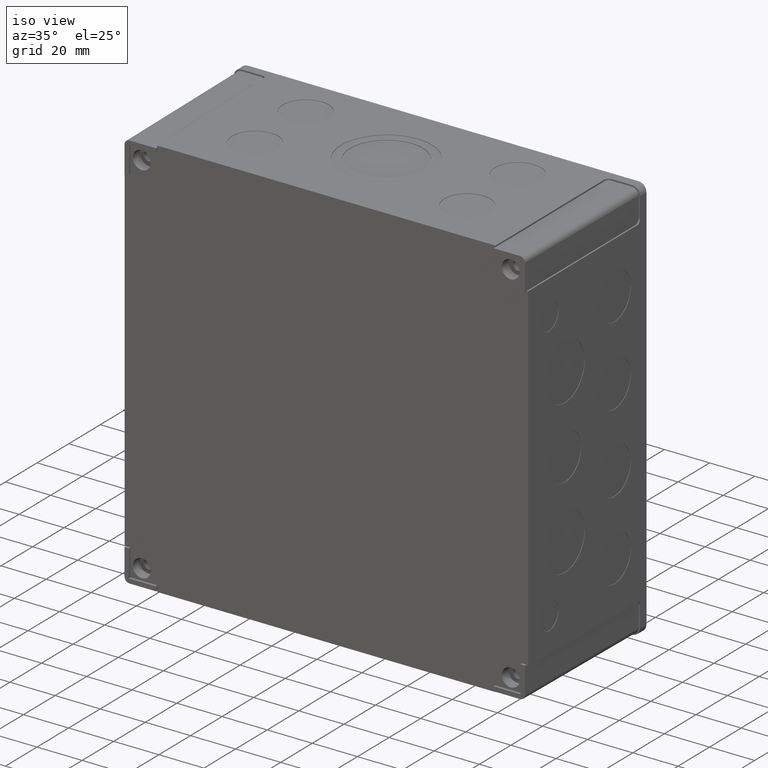
[diagram: clean part render]
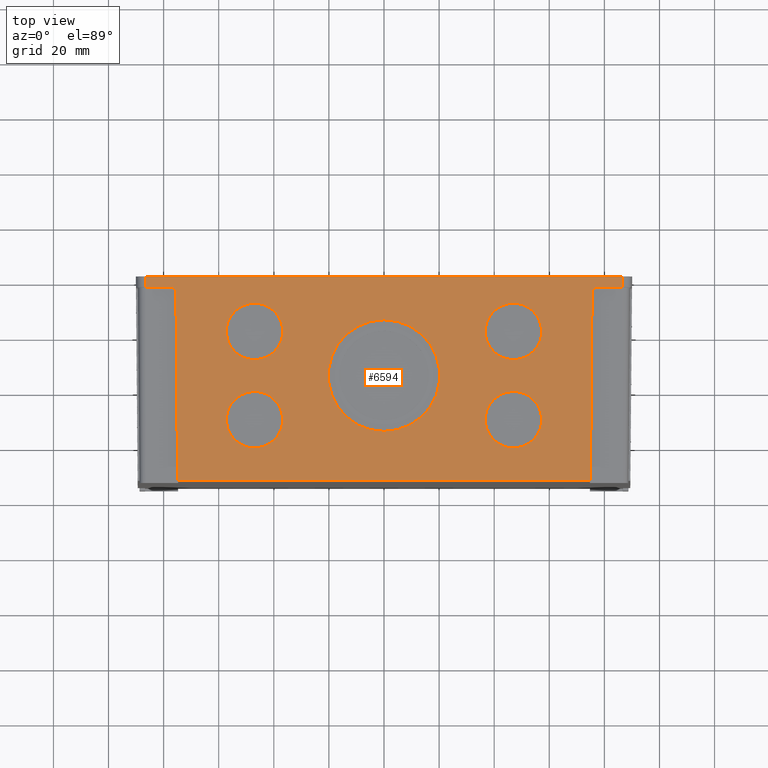
[diagram: tour spotlight — one face highlighted and labeled with its STEP entity id]
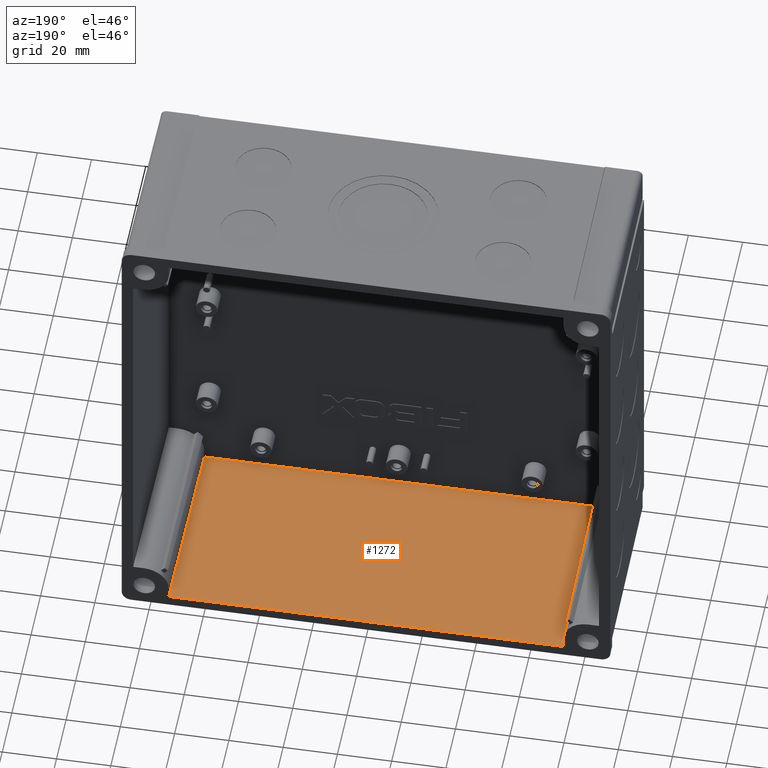
[diagram: tour spotlight — one face highlighted and labeled with its STEP entity id]
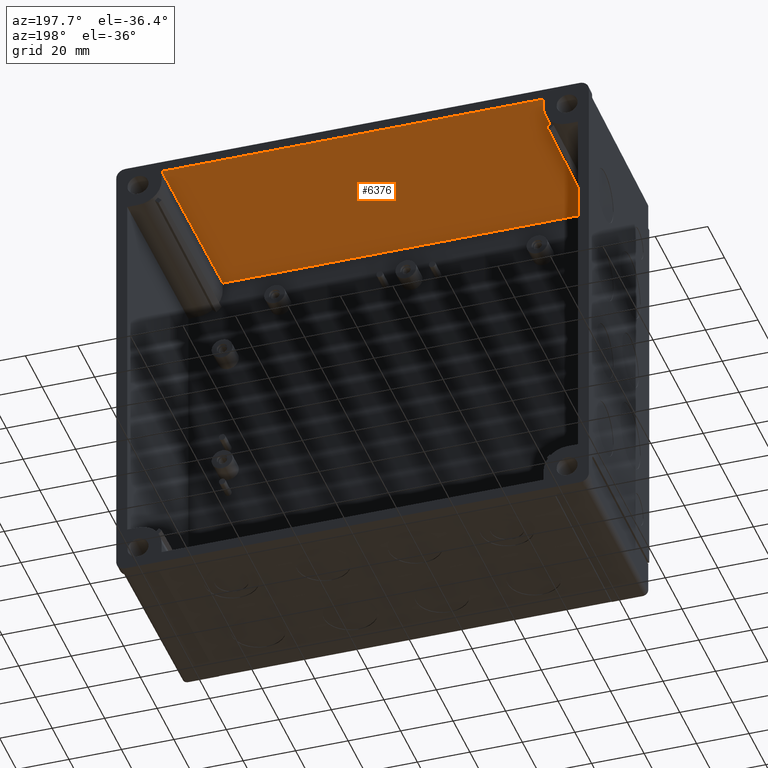
[diagram: tour spotlight — one face highlighted and labeled with its STEP entity id]
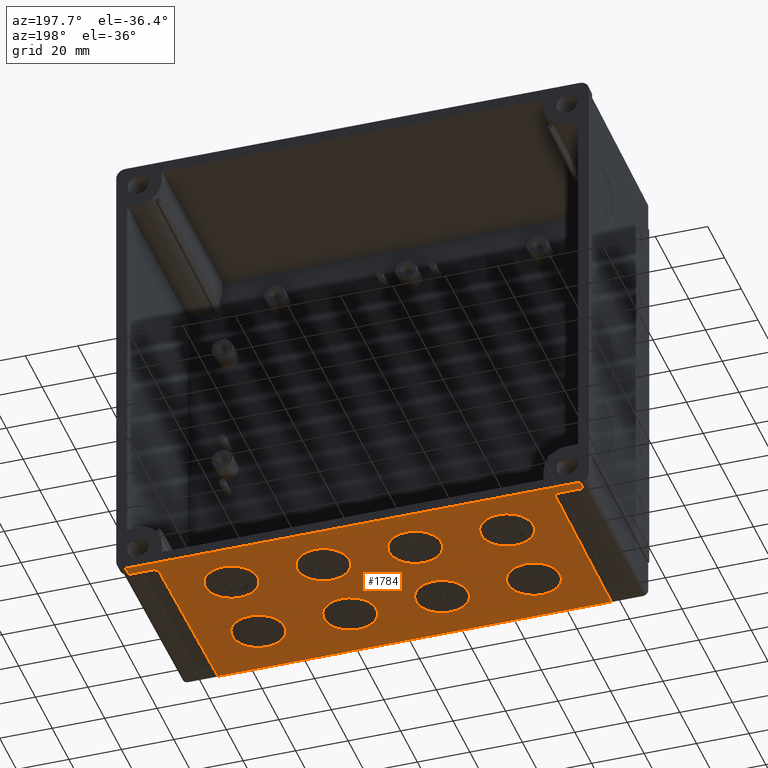
[diagram: tour spotlight — one face highlighted and labeled with its STEP entity id]
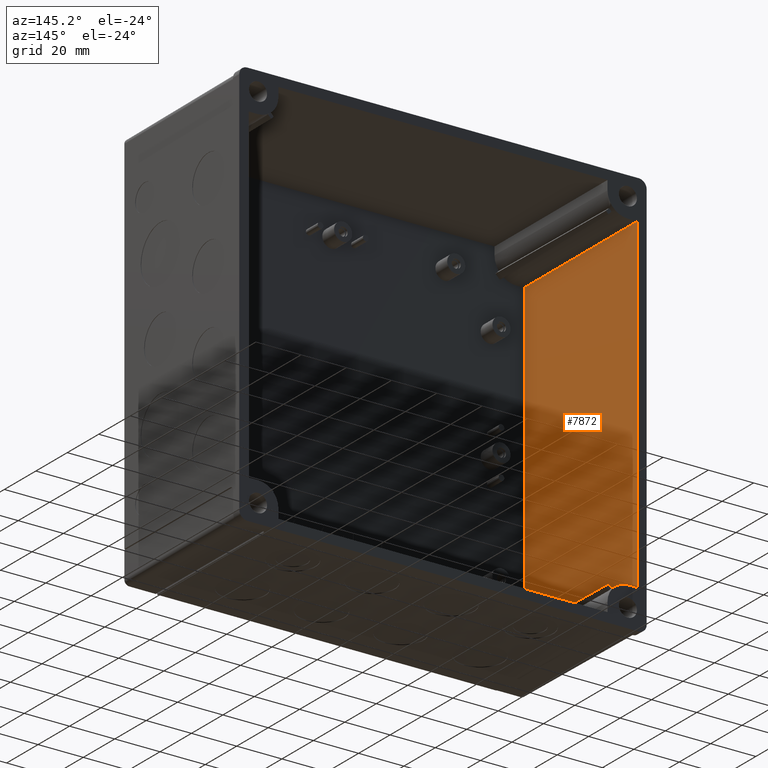
[diagram: tour spotlight — one face highlighted and labeled with its STEP entity id]
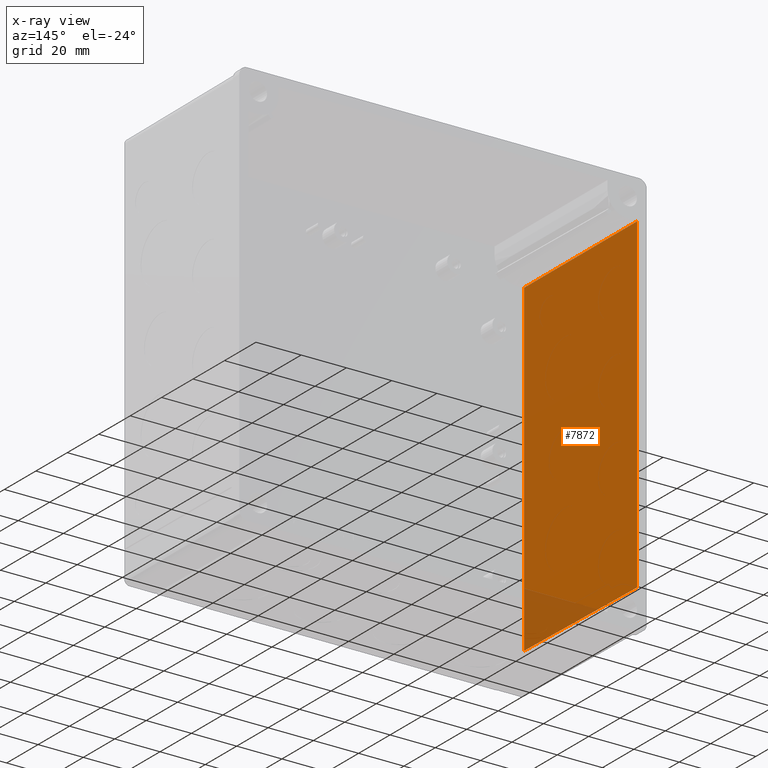
[diagram: x-ray of the same camera — body ghosted, this tour face saturated]
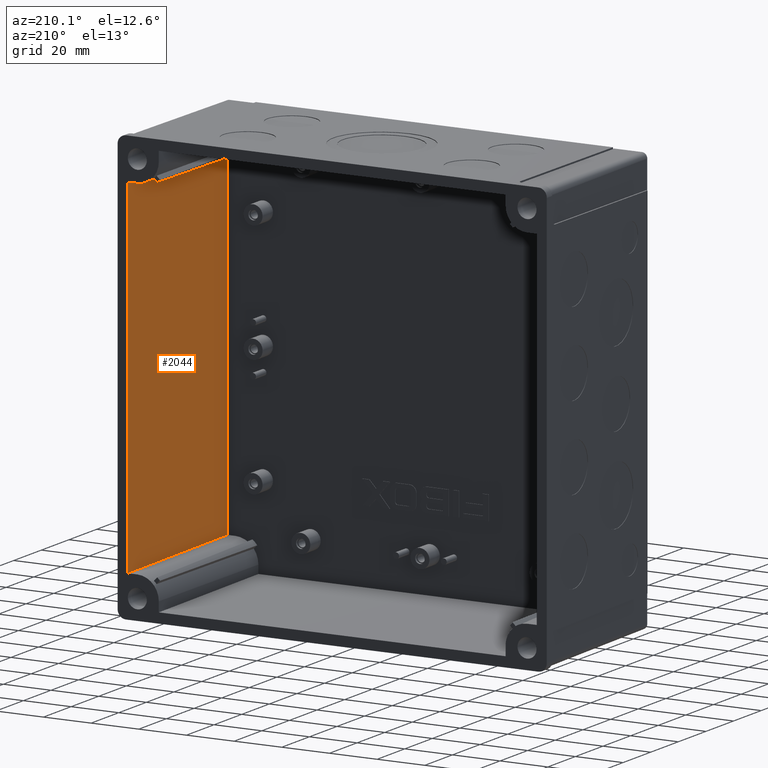
[diagram: tour spotlight — one face highlighted and labeled with its STEP entity id]
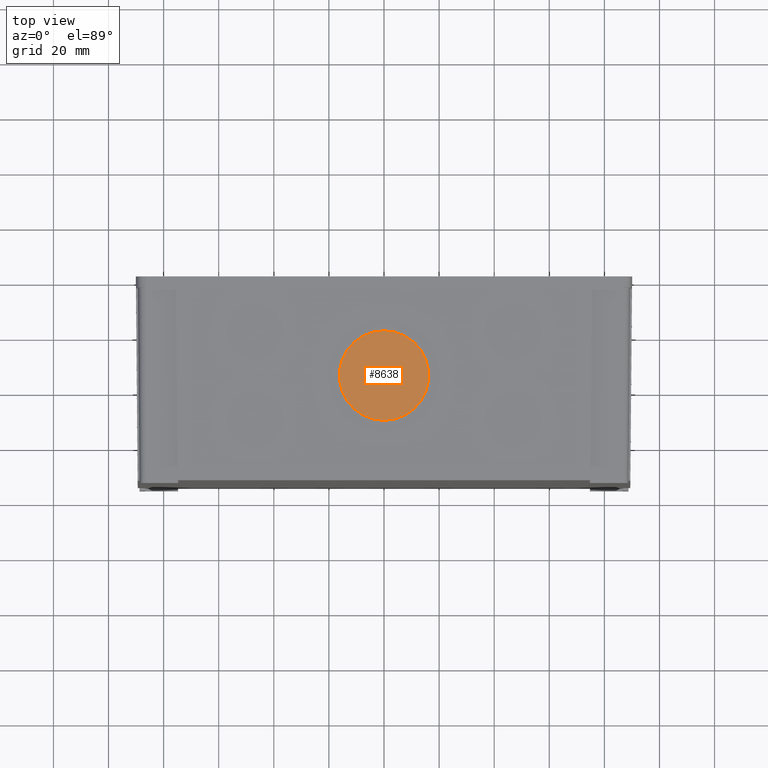
[diagram: tour spotlight — one face highlighted and labeled with its STEP entity id]
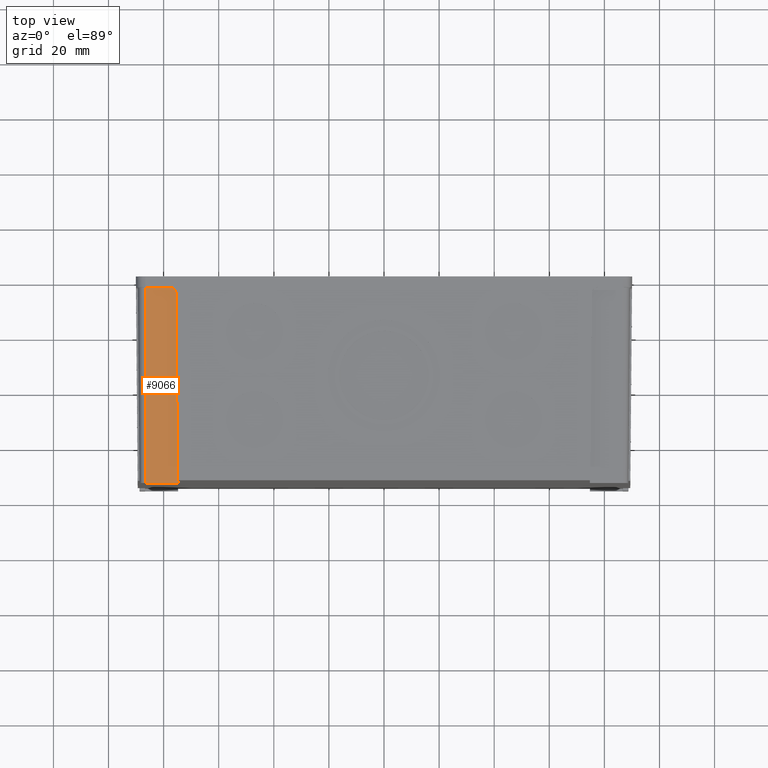
[diagram: tour spotlight — one face highlighted and labeled with its STEP entity id]
A machine part: a face-by-face anatomy tour. The part has 428 B-rep faces; the first image is the clean iso view, then the 8 largest visible faces are spotlighted one at a time (largest first), each with its STEP entity span.

Face 1 — top view, entity #6594. In plain terms, the highlighted planar face has unit normal (0, -0.0087, 1).
Definition (entity closure, byte-faithful):
#205 = VERTEX_POINT ( 'NONE', #8828 ) ;
#265 = EDGE_CURVE ( 'NONE', #4322, #10791, #11229, .T. ) ;
#282 = VECTOR ( 'NONE', #10625, 1000.000000000000000 ) ;
#449 = VERTEX_POINT ( 'NONE', #12184 ) ;
#563 = CARTESIAN_POINT ( 'NONE',  ( -47.00000000000000000, -9.749628749875668600, 89.96491627889084000 ) ) ;
#571 = CARTESIAN_POINT ( 'NONE',  ( 0.0000000000000000000, -35.99862923031017200, 89.73584472205853000 ) ) ;
#588 = VERTEX_POINT ( 'NONE', #7741 ) ;
#667 = EDGE_LOOP ( 'NONE', ( #12443, #11921 ) ) ;
#700 = ORIENTED_EDGE ( 'NONE', *, *, #2062, .F. ) ;
#730 = EDGE_CURVE ( 'NONE', #11660, #2680, #11445, .T. ) ;
#822 = CIRCLE ( 'NONE', #10360, 10.25000000000000000 ) ;
#855 = EDGE_LOOP ( 'NONE', ( #3235, #10548 ) ) ;
#983 =( BOUNDED_CURVE ( )  B_SPLINE_CURVE ( 3, ( #2498, #1476, #11115, #2364 ),
 .UNSPECIFIED., .F., .F. ) 
 B_SPLINE_CURVE_WITH_KNOTS ( ( 4, 4 ),
 ( 1.579522973054867900, 3.141592653589786500 ),
 .UNSPECIFIED. ) 
 CURVE ( )  GEOMETRIC_REPRESENTATION_ITEM ( )  RATIONAL_B_SPLINE_CURVE ( ( 1.000000000000000000, 0.8067902504155251000, 0.8067902504155251000, 1.000000000000000000 ) ) 
 REPRESENTATION_ITEM ( '' )  );
#1083 = LINE ( 'NONE', #7482, #11322 ) ;
#1098 = DIRECTION ( 'NONE',  ( 0.0000000000000000000, -0.008726535498373953800, 0.9999619230641713100 ) ) ;
#1151 = CARTESIAN_POINT ( 'NONE',  ( -46.99999999999999300, -51.99801999933691100, 89.59622015408454800 ) ) ;
#1178 = PLANE ( 'NONE',  #9049 ) ;
#1295 = VERTEX_POINT ( 'NONE', #3381 ) ;
#1399 = DIRECTION ( 'NONE',  ( -0.008726203243944238200, -0.9999238504775704900, -0.008726203243944236400 ) ) ;
#1441 = FACE_BOUND ( 'NONE', #12183, .T. ) ;
#1476 = CARTESIAN_POINT ( 'NONE',  ( 75.54285174598580000, -4.819108778265556800, 90.00794427482277600 ) ) ;
#1484 = ORIENTED_EDGE ( 'NONE', *, *, #1831, .F. ) ;
#1541 = VECTOR ( 'NONE', #9645, 1000.000000000000000 ) ;
#1572 = CARTESIAN_POINT ( 'NONE',  ( 47.00000000000000000, -9.749628749875668600, 89.96491627889084000 ) ) ;
#1722 = CIRCLE ( 'NONE', #8826, 10.25000000000000000 ) ;
#1754 = VECTOR ( 'NONE', #1399, 1000.000000000000100 ) ;
#1831 = EDGE_CURVE ( 'NONE', #9706, #3909, #12449, .T. ) ;
#1877 = FACE_BOUND ( 'NONE', #667, .T. ) ;
#1941 = DIRECTION ( 'NONE',  ( 0.0000000000000000000, -0.008726535498373953800, 0.9999619230641713100 ) ) ;
#1971 = CARTESIAN_POINT ( 'NONE',  ( -86.55000000000001100, -4.000000000000000000, 90.01509252883694500 ) ) ;
#1985 = ORIENTED_EDGE ( 'NONE', *, *, #11187, .F. ) ;
#2009 = AXIS2_PLACEMENT_3D ( 'NONE', #571, #12034, #5380 ) ;
#2018 = CARTESIAN_POINT ( 'NONE',  ( 46.99999999999999300, -51.99801999933691100, 89.59622015408454800 ) ) ;
#2062 = EDGE_CURVE ( 'NONE', #449, #11787, #9298, .T. ) ;
#2088 = CARTESIAN_POINT ( 'NONE',  ( -76.36913996860552300, -4.000000000000000000, 90.01509252883694500 ) ) ;
#2108 = DIRECTION ( 'NONE',  ( 0.0000000000000000000, -0.008726535498373953800, 0.9999619230641713100 ) ) ;
#2201 = CIRCLE ( 'NONE', #10753, 10.25000000000000400 ) ;
#2243 = EDGE_CURVE ( 'NONE', #1295, #6822, #2201, .T. ) ;
#2324 = CARTESIAN_POINT ( 'NONE',  ( 46.99999999999999300, -51.99801999933691100, 89.59622015408454800 ) ) ;
#2364 = CARTESIAN_POINT ( 'NONE',  ( 77.53262242118991300, -4.000000000000000000, 90.01509252883694500 ) ) ;
#2386 = ORIENTED_EDGE ( 'NONE', *, *, #3724, .T. ) ;
#2498 = CARTESIAN_POINT ( 'NONE',  ( 75.53269857506154500, -5.982546929003254000, 89.99779110389856400 ) ) ;
#2512 = DIRECTION ( 'NONE',  ( 0.0000000000000000000, -0.9999619230641712000, -0.008726535498374191400 ) ) ;
#2549 = DIRECTION ( 'NONE',  ( 0.0000000000000000000, -0.008726535498373953800, 0.9999619230641713100 ) ) ;
#2599 = ORIENTED_EDGE ( 'NONE', *, *, #8441, .F. ) ;
#2626 = VECTOR ( 'NONE', #8684, 1000.000000000000000 ) ;
#2680 = VERTEX_POINT ( 'NONE', #10184 ) ;
#2745 = EDGE_CURVE ( 'NONE', #12392, #3257, #10776, .T. ) ;
#2881 = ORIENTED_EDGE ( 'NONE', *, *, #265, .T. ) ;
#2959 = DIRECTION ( 'NONE',  ( 0.0000000000000000000, -0.9999619230641712000, -0.008726535498374191400 ) ) ;
#2989 = CARTESIAN_POINT ( 'NONE',  ( -86.55000000000001100, -4.000000000000000000, 90.01509252883694500 ) ) ;
#3038 = LINE ( 'NONE', #1971, #1541 ) ;
#3052 = CARTESIAN_POINT ( 'NONE',  ( -75.54285174598577200, -4.819108778265550600, 90.00794427482277600 ) ) ;
#3059 = DIRECTION ( 'NONE',  ( 0.0000000000000000000, -0.9999619230641713100, -0.008726535498373953800 ) ) ;
#3119 = EDGE_CURVE ( 'NONE', #5567, #205, #5934, .T. ) ;
#3235 = ORIENTED_EDGE ( 'NONE', *, *, #4721, .F. ) ;
#3243 = EDGE_CURVE ( 'NONE', #6822, #1295, #4734, .T. ) ;
#3257 = VERTEX_POINT ( 'NONE', #10297 ) ;
#3380 = CIRCLE ( 'NONE', #2009, 20.25000000000001400 ) ;
#3381 = CARTESIAN_POINT ( 'NONE',  ( 46.99999999999999300, -41.74841028792915400, 89.68566714294289000 ) ) ;
#3448 = CARTESIAN_POINT ( 'NONE',  ( 47.00000000000000000, -19.99923846128342600, 89.87546929003251300 ) ) ;
#3491 = AXIS2_PLACEMENT_3D ( 'NONE', #1151, #2108, #4026 ) ;
#3506 = EDGE_CURVE ( 'NONE', #449, #3909, #983, .T. ) ;
#3534 = ORIENTED_EDGE ( 'NONE', *, *, #9511, .F. ) ;
#3709 = DIRECTION ( 'NONE',  ( -0.008726203243944238200, 0.9999238504775704900, 0.008726203243944236400 ) ) ;
#3724 = EDGE_CURVE ( 'NONE', #9706, #2680, #7152, .T. ) ;
#3755 = CARTESIAN_POINT ( 'NONE',  ( -77.53262242118989900, -4.000000000000000000, 90.01509252883694500 ) ) ;
#3909 = VERTEX_POINT ( 'NONE', #4177 ) ;
#4026 = DIRECTION ( 'NONE',  ( 0.0000000000000000000, -0.9999619230641712000, -0.008726535498374187900 ) ) ;
#4177 = CARTESIAN_POINT ( 'NONE',  ( 77.53262242118991300, -4.000000000000000000, 90.01509252883694500 ) ) ;
#4231 = CIRCLE ( 'NONE', #10203, 10.25000000000000400 ) ;
#4254 = CARTESIAN_POINT ( 'NONE',  ( 47.00000000000000000, -19.99923846128342600, 89.87546929003251300 ) ) ;
#4308 = CARTESIAN_POINT ( 'NONE',  ( -86.55000000000001100, -74.00000000000000000, 89.40421178348384500 ) ) ;
#4322 = VERTEX_POINT ( 'NONE', #3755 ) ;
#4390 = DIRECTION ( 'NONE',  ( 0.0000000000000000000, -0.008726535498373953800, 0.9999619230641713100 ) ) ;
#4400 = VERTEX_POINT ( 'NONE', #11631 ) ;
#4472 = VERTEX_POINT ( 'NONE', #11678 ) ;
#4480 = EDGE_CURVE ( 'NONE', #10501, #588, #1722, .T. ) ;
#4593 = ORIENTED_EDGE ( 'NONE', *, *, #6174, .F. ) ;
#4721 = EDGE_CURVE ( 'NONE', #588, #10501, #822, .T. ) ;
#4734 = CIRCLE ( 'NONE', #6073, 10.25000000000000400 ) ;
#4855 = ORIENTED_EDGE ( 'NONE', *, *, #5371, .T. ) ;
#5094 = DIRECTION ( 'NONE',  ( 0.0000000000000000000, -0.008726535498373953800, 0.9999619230641713100 ) ) ;
#5335 = FACE_OUTER_BOUND ( 'NONE', #5693, .T. ) ;
#5371 = EDGE_CURVE ( 'NONE', #4400, #4322, #3038, .T. ) ;
#5380 = DIRECTION ( 'NONE',  ( 0.0000000000000000000, -0.9999619230641712000, -0.008726535498374085600 ) ) ;
#5389 = DIRECTION ( 'NONE',  ( 0.0000000000000000000, -0.9999619230641712000, -0.008726535498374191400 ) ) ;
#5445 = CARTESIAN_POINT ( 'NONE',  ( 0.0000000000000000000, -35.99862923031017200, 89.73584472205853000 ) ) ;
#5495 = VERTEX_POINT ( 'NONE', #6041 ) ;
#5567 = VERTEX_POINT ( 'NONE', #8842 ) ;
#5579 = CARTESIAN_POINT ( 'NONE',  ( 86.55000000000001100, -4.000000000000000000, 90.01509252883694500 ) ) ;
#5671 = CIRCLE ( 'NONE', #11176, 10.25000000000000000 ) ;
#5693 = EDGE_LOOP ( 'NONE', ( #700, #8048, #1484, #2386, #6379, #3534, #4855, #2881, #2599, #7079 ) ) ;
#5710 = CARTESIAN_POINT ( 'NONE',  ( -86.55000000000001100, 0.0000000000000000000, 90.04999999999998300 ) ) ;
#5934 = CIRCLE ( 'NONE', #3491, 10.25000000000000400 ) ;
#6041 = CARTESIAN_POINT ( 'NONE',  ( 0.0000000000000000000, -56.24785817235964900, 89.55913237821646100 ) ) ;
#6073 = AXIS2_PLACEMENT_3D ( 'NONE', #2324, #8067, #11905 ) ;
#6174 = EDGE_CURVE ( 'NONE', #5495, #4472, #3380, .T. ) ;
#6219 = CARTESIAN_POINT ( 'NONE',  ( -86.55000000000001100, 0.0000000000000000000, 90.04999999999998300 ) ) ;
#6379 = ORIENTED_EDGE ( 'NONE', *, *, #730, .F. ) ;
#6594 = ADVANCED_FACE ( 'NONE', ( #1877, #10032, #1441, #11816, #7326, #5335 ), #1178, .T. ) ;
#6641 = ORIENTED_EDGE ( 'NONE', *, *, #2745, .F. ) ;
#6667 = VECTOR ( 'NONE', #9392, 1000.000000000000000 ) ;
#6822 = VERTEX_POINT ( 'NONE', #7291 ) ;
#6862 = CARTESIAN_POINT ( 'NONE',  ( -86.55000000000001100, 0.0000000000000000000, 90.04999999999999700 ) ) ;
#7079 = ORIENTED_EDGE ( 'NONE', *, *, #7794, .T. ) ;
#7086 = LINE ( 'NONE', #6219, #12188 ) ;
#7152 = LINE ( 'NONE', #10448, #2626 ) ;
#7184 = CARTESIAN_POINT ( 'NONE',  ( 74.93911925464684000, -74.00000000000000000, 89.40421178348384500 ) ) ;
#7291 = CARTESIAN_POINT ( 'NONE',  ( 46.99999999999999300, -62.24762971074466800, 89.50677316522622100 ) ) ;
#7326 = FACE_BOUND ( 'NONE', #9909, .T. ) ;
#7358 = CARTESIAN_POINT ( 'NONE',  ( -74.93911925464681200, -74.00000000000000000, 89.40421178348384500 ) ) ;
#7408 = DIRECTION ( 'NONE',  ( 0.0000000000000000000, -0.008726535498373953800, 0.9999619230641713100 ) ) ;
#7476 = VERTEX_POINT ( 'NONE', #7358 ) ;
#7482 = CARTESIAN_POINT ( 'NONE',  ( -75.58574242593051900, 0.09567633973286265900, 90.05083495476753800 ) ) ;
#7562 = CARTESIAN_POINT ( 'NONE',  ( -46.99999999999999300, -51.99801999933691100, 89.59622015408454800 ) ) ;
#7741 = CARTESIAN_POINT ( 'NONE',  ( 47.00000000000000000, -30.24884817269118300, 89.78602230117417100 ) ) ;
#7794 = EDGE_CURVE ( 'NONE', #7476, #11787, #10742, .T. ) ;
#7964 = CARTESIAN_POINT ( 'NONE',  ( -86.55000000000001100, 0.0000000000000000000, 90.04999999999999700 ) ) ;
#8048 = ORIENTED_EDGE ( 'NONE', *, *, #3506, .T. ) ;
#8067 = DIRECTION ( 'NONE',  ( 0.0000000000000000000, -0.008726535498373953800, 0.9999619230641713100 ) ) ;
#8111 = CARTESIAN_POINT ( 'NONE',  ( 75.57256144547977800, -1.414714417499995000, 90.03765397431678300 ) ) ;
#8419 = EDGE_CURVE ( 'NONE', #205, #5567, #4231, .T. ) ;
#8428 = DIRECTION ( 'NONE',  ( 0.0000000000000000000, 0.9999619230641713100, 0.008726535498373953800 ) ) ;
#8441 = EDGE_CURVE ( 'NONE', #7476, #10791, #1083, .T. ) ;
#8684 = DIRECTION ( 'NONE',  ( 0.0000000000000000000, 0.9999619230641713100, 0.008726535498373953800 ) ) ;
#8826 = AXIS2_PLACEMENT_3D ( 'NONE', #4254, #5094, #10045 ) ;
#8828 = CARTESIAN_POINT ( 'NONE',  ( -46.99999999999999300, -62.24762971074466800, 89.50677316522622100 ) ) ;
#8842 = CARTESIAN_POINT ( 'NONE',  ( -46.99999999999999300, -41.74841028792915400, 89.68566714294289000 ) ) ;
#9049 = AXIS2_PLACEMENT_3D ( 'NONE', #7964, #1098, #3059 ) ;
#9298 = LINE ( 'NONE', #8111, #1754 ) ;
#9299 = DIRECTION ( 'NONE',  ( 0.0000000000000000000, -0.9999619230641712000, -0.008726535498374187900 ) ) ;
#9383 = DIRECTION ( 'NONE',  ( 0.0000000000000000000, -0.9999619230641712000, -0.008726535498374085600 ) ) ;
#9392 = DIRECTION ( 'NONE',  ( 1.000000000000000000, 0.0000000000000000000, 0.0000000000000000000 ) ) ;
#9493 = EDGE_LOOP ( 'NONE', ( #1985, #6641 ) ) ;
#9511 = EDGE_CURVE ( 'NONE', #4400, #11660, #7086, .T. ) ;
#9645 = DIRECTION ( 'NONE',  ( 1.000000000000000000, 0.0000000000000000000, 0.0000000000000000000 ) ) ;
#9706 = VERTEX_POINT ( 'NONE', #5579 ) ;
#9762 = CARTESIAN_POINT ( 'NONE',  ( -77.53262242118989900, -4.000000000000000000, 90.01509252883694500 ) ) ;
#9763 = CARTESIAN_POINT ( 'NONE',  ( -75.53269857506154500, -5.982546929003254000, 89.99779110389856400 ) ) ;
#9771 = DIRECTION ( 'NONE',  ( 0.0000000000000000000, -0.008726535498373953800, 0.9999619230641713100 ) ) ;
#9803 = DIRECTION ( 'NONE',  ( 1.000000000000000000, 0.0000000000000000000, 0.0000000000000000000 ) ) ;
#9909 = EDGE_LOOP ( 'NONE', ( #4593, #11443 ) ) ;
#10032 = FACE_BOUND ( 'NONE', #855, .T. ) ;
#10045 = DIRECTION ( 'NONE',  ( 0.0000000000000000000, -0.9999619230641712000, -0.008726535498374191400 ) ) ;
#10140 = ORIENTED_EDGE ( 'NONE', *, *, #8419, .F. ) ;
#10184 = CARTESIAN_POINT ( 'NONE',  ( 86.55000000000001100, 0.0000000000000000000, 90.04999999999999700 ) ) ;
#10203 = AXIS2_PLACEMENT_3D ( 'NONE', #7562, #2549, #9299 ) ;
#10223 = DIRECTION ( 'NONE',  ( 0.0000000000000000000, -0.008726535498373953800, 0.9999619230641713100 ) ) ;
#10262 = CARTESIAN_POINT ( 'NONE',  ( -47.00000000000000000, -19.99923846128342600, 89.87546929003251300 ) ) ;
#10297 = CARTESIAN_POINT ( 'NONE',  ( -47.00000000000000000, -30.24884817269118300, 89.78602230117417100 ) ) ;
#10360 = AXIS2_PLACEMENT_3D ( 'NONE', #3448, #10223, #5389 ) ;
#10448 = CARTESIAN_POINT ( 'NONE',  ( 86.55000000000001100, 0.0000000000000000000, 90.04999999999999700 ) ) ;
#10501 = VERTEX_POINT ( 'NONE', #1572 ) ;
#10512 = CARTESIAN_POINT ( 'NONE',  ( -47.00000000000000000, -19.99923846128342600, 89.87546929003251300 ) ) ;
#10542 = VECTOR ( 'NONE', #9803, 1000.000000000000000 ) ;
#10548 = ORIENTED_EDGE ( 'NONE', *, *, #4480, .F. ) ;
#10625 = DIRECTION ( 'NONE',  ( -1.000000000000000000, 0.0000000000000000000, 0.0000000000000000000 ) ) ;
#10656 = CIRCLE ( 'NONE', #11417, 20.25000000000001400 ) ;
#10742 = LINE ( 'NONE', #4308, #6667 ) ;
#10753 = AXIS2_PLACEMENT_3D ( 'NONE', #2018, #9771, #11818 ) ;
#10776 = CIRCLE ( 'NONE', #11252, 10.25000000000000000 ) ;
#10791 = VERTEX_POINT ( 'NONE', #9763 ) ;
#11084 = EDGE_CURVE ( 'NONE', #4472, #5495, #10656, .T. ) ;
#11115 = CARTESIAN_POINT ( 'NONE',  ( 76.36913996860553800, -4.000000000000008000, 90.01509252883693100 ) ) ;
#11176 = AXIS2_PLACEMENT_3D ( 'NONE', #10512, #1941, #2959 ) ;
#11187 = EDGE_CURVE ( 'NONE', #3257, #12392, #5671, .T. ) ;
#11229 =( BOUNDED_CURVE ( )  B_SPLINE_CURVE ( 3, ( #9762, #2088, #3052, #11929 ),
 .UNSPECIFIED., .F., .F. ) 
 B_SPLINE_CURVE_WITH_KNOTS ( ( 4, 4 ),
 ( 3.141592653589793100, 4.703662334124718600 ),
 .UNSPECIFIED. ) 
 CURVE ( )  GEOMETRIC_REPRESENTATION_ITEM ( )  RATIONAL_B_SPLINE_CURVE ( ( 1.000000000000000000, 0.8067902504155234400, 0.8067902504155234400, 1.000000000000000000 ) ) 
 REPRESENTATION_ITEM ( '' )  );
#11252 = AXIS2_PLACEMENT_3D ( 'NONE', #10262, #4390, #2512 ) ;
#11322 = VECTOR ( 'NONE', #3709, 1000.000000000000100 ) ;
#11417 = AXIS2_PLACEMENT_3D ( 'NONE', #5445, #7408, #9383 ) ;
#11443 = ORIENTED_EDGE ( 'NONE', *, *, #11084, .F. ) ;
#11445 = LINE ( 'NONE', #6862, #10542 ) ;
#11631 = CARTESIAN_POINT ( 'NONE',  ( -86.55000000000001100, -4.000000000000000000, 90.01509252883693100 ) ) ;
#11660 = VERTEX_POINT ( 'NONE', #5710 ) ;
#11678 = CARTESIAN_POINT ( 'NONE',  ( 2.479909768273391900E-015, -15.74940028826069300, 89.91255706590061400 ) ) ;
#11787 = VERTEX_POINT ( 'NONE', #7184 ) ;
#11816 = FACE_BOUND ( 'NONE', #9493, .T. ) ;
#11818 = DIRECTION ( 'NONE',  ( 0.0000000000000000000, -0.9999619230641712000, -0.008726535498374187900 ) ) ;
#11905 = DIRECTION ( 'NONE',  ( 0.0000000000000000000, -0.9999619230641712000, -0.008726535498374187900 ) ) ;
#11917 = ORIENTED_EDGE ( 'NONE', *, *, #3119, .F. ) ;
#11921 = ORIENTED_EDGE ( 'NONE', *, *, #2243, .F. ) ;
#11929 = CARTESIAN_POINT ( 'NONE',  ( -75.53269857506154500, -5.982546929003254000, 89.99779110389856400 ) ) ;
#12034 = DIRECTION ( 'NONE',  ( 0.0000000000000000000, -0.008726535498373953800, 0.9999619230641713100 ) ) ;
#12183 = EDGE_LOOP ( 'NONE', ( #10140, #11917 ) ) ;
#12184 = CARTESIAN_POINT ( 'NONE',  ( 75.53269857506154500, -5.982546929003254000, 89.99779110389856400 ) ) ;
#12188 = VECTOR ( 'NONE', #8428, 1000.000000000000000 ) ;
#12392 = VERTEX_POINT ( 'NONE', #563 ) ;
#12443 = ORIENTED_EDGE ( 'NONE', *, *, #3243, .F. ) ;
#12449 = LINE ( 'NONE', #2989, #282 ) ;

Face 2 — auxiliary view, entity #1272. In plain terms, the highlighted planar face has unit normal (-0, -0.0087, -1).
Definition (entity closure, byte-faithful):
#277 = LINE ( 'NONE', #5628, #12444 ) ;
#441 = AXIS2_PLACEMENT_3D ( 'NONE', #3425, #6170, #6345 ) ;
#1248 = EDGE_LOOP ( 'NONE', ( #8026, #10001, #6595, #11465 ) ) ;
#1272 = ADVANCED_FACE ( 'NONE', ( #9028 ), #4276, .F. ) ;
#1383 = VERTEX_POINT ( 'NONE', #6390 ) ;
#3425 = CARTESIAN_POINT ( 'NONE',  ( 72.74999999999995700, 0.0000000000000000000, -85.84999999999998000 ) ) ;
#3536 = CARTESIAN_POINT ( 'NONE',  ( -72.13039238685608700, -71.00000000000000000, -85.23039238685609600 ) ) ;
#4023 = VECTOR ( 'NONE', #4604, 1000.000000000000000 ) ;
#4271 = VECTOR ( 'NONE', #5155, 1000.000000000000000 ) ;
#4276 = PLANE ( 'NONE',  #441 ) ;
#4415 = EDGE_CURVE ( 'NONE', #10428, #12240, #6227, .T. ) ;
#4604 = DIRECTION ( 'NONE',  ( -1.000000000000000000, 0.0000000000000000000, 9.537998493343273600E-017 ) ) ;
#4705 = VERTEX_POINT ( 'NONE', #3536 ) ;
#4922 = CARTESIAN_POINT ( 'NONE',  ( 72.74999999999995700, -1.084202169341756400E-016, -85.84999999999998000 ) ) ;
#5155 = DIRECTION ( 'NONE',  ( 0.008726203243944236400, 0.9999238504775704900, -0.008726203243944236400 ) ) ;
#5628 = CARTESIAN_POINT ( 'NONE',  ( -72.73892066634552100, -1.269565887795381700, -85.83892066634551600 ) ) ;
#5672 = DIRECTION ( 'NONE',  ( -0.008726203243944236400, 0.9999238504775704900, -0.008726203243944236400 ) ) ;
#5902 = DIRECTION ( 'NONE',  ( -1.000000000000000000, 0.0000000000000000000, 9.537998493343273600E-017 ) ) ;
#6170 = DIRECTION ( 'NONE',  ( -9.537635315586709100E-017, -0.008726535498373953800, -0.9999619230641713100 ) ) ;
#6227 = LINE ( 'NONE', #11718, #7912 ) ;
#6345 = DIRECTION ( 'NONE',  ( 0.0000000000000000000, 0.9999619230641713100, -0.008726535498373953800 ) ) ;
#6390 = CARTESIAN_POINT ( 'NONE',  ( 72.13039238685607300, -71.00000000000000000, -85.23039238685611000 ) ) ;
#6595 = ORIENTED_EDGE ( 'NONE', *, *, #11553, .F. ) ;
#6739 = EDGE_CURVE ( 'NONE', #1383, #10428, #10339, .T. ) ;
#7673 = LINE ( 'NONE', #9424, #4023 ) ;
#7912 = VECTOR ( 'NONE', #5902, 1000.000000000000000 ) ;
#8026 = ORIENTED_EDGE ( 'NONE', *, *, #6739, .T. ) ;
#8053 = CARTESIAN_POINT ( 'NONE',  ( 72.74999999999995700, 0.0000000000000000000, -85.84999999999998000 ) ) ;
#9028 = FACE_OUTER_BOUND ( 'NONE', #1248, .T. ) ;
#9424 = CARTESIAN_POINT ( 'NONE',  ( 72.74999999999995700, -71.00000000000000000, -85.23039238685611000 ) ) ;
#9696 = CARTESIAN_POINT ( 'NONE',  ( -72.74999999999998600, 0.0000000000000000000, -85.84999999999996600 ) ) ;
#10001 = ORIENTED_EDGE ( 'NONE', *, *, #4415, .T. ) ;
#10191 = EDGE_CURVE ( 'NONE', #1383, #4705, #7673, .T. ) ;
#10339 = LINE ( 'NONE', #8053, #4271 ) ;
#10428 = VERTEX_POINT ( 'NONE', #4922 ) ;
#11465 = ORIENTED_EDGE ( 'NONE', *, *, #10191, .F. ) ;
#11553 = EDGE_CURVE ( 'NONE', #4705, #12240, #277, .T. ) ;
#11718 = CARTESIAN_POINT ( 'NONE',  ( 72.74999999999995700, 0.0000000000000000000, -85.84999999999998000 ) ) ;
#12240 = VERTEX_POINT ( 'NONE', #9696 ) ;
#12444 = VECTOR ( 'NONE', #5672, 1000.000000000000000 ) ;

Face 3 — auxiliary view, entity #6376. In plain terms, the highlighted planar face has unit normal (0, -0.0087, 1).
Definition (entity closure, byte-faithful):
#23 = VECTOR ( 'NONE', #8961, 1000.000000000000000 ) ;
#127 = EDGE_CURVE ( 'NONE', #3971, #10376, #10553, .T. ) ;
#733 = CARTESIAN_POINT ( 'NONE',  ( 72.74999999999998600, 0.0000000000000000000, 85.84999999999998000 ) ) ;
#885 = CARTESIAN_POINT ( 'NONE',  ( 72.13039238685610100, -71.00000000000000000, 85.23039238685611000 ) ) ;
#970 = EDGE_CURVE ( 'NONE', #3132, #11627, #2398, .T. ) ;
#1565 = CARTESIAN_POINT ( 'NONE',  ( 72.74999999999998600, -71.00000000000000000, 85.23039238685611000 ) ) ;
#1695 = VECTOR ( 'NONE', #7360, 1000.000000000000000 ) ;
#1790 = VECTOR ( 'NONE', #3436, 1000.000000000000000 ) ;
#1990 = LINE ( 'NONE', #9130, #1695 ) ;
#2264 = CARTESIAN_POINT ( 'NONE',  ( -72.74999999999995700, 0.0000000000000000000, 85.84999999999999400 ) ) ;
#2398 = LINE ( 'NONE', #1565, #1790 ) ;
#3117 = EDGE_CURVE ( 'NONE', #11627, #10376, #8965, .T. ) ;
#3132 = VERTEX_POINT ( 'NONE', #6959 ) ;
#3436 = DIRECTION ( 'NONE',  ( 1.000000000000000000, 0.0000000000000000000, -9.537998493343273600E-017 ) ) ;
#3971 = VERTEX_POINT ( 'NONE', #2264 ) ;
#4963 = CARTESIAN_POINT ( 'NONE',  ( 72.74999999999998600, 0.0000000000000000000, 85.84999999999998000 ) ) ;
#5644 = FACE_OUTER_BOUND ( 'NONE', #9385, .T. ) ;
#6376 = ADVANCED_FACE ( 'NONE', ( #5644 ), #12245, .F. ) ;
#6959 = CARTESIAN_POINT ( 'NONE',  ( -72.13039238685607300, -70.99999999999998600, 85.23039238685612400 ) ) ;
#7360 = DIRECTION ( 'NONE',  ( -0.008726203243944206900, 0.9999238504775704900, 0.008726203243944236400 ) ) ;
#7760 = VECTOR ( 'NONE', #8855, 1000.000000000000000 ) ;
#8129 = ORIENTED_EDGE ( 'NONE', *, *, #970, .F. ) ;
#8215 = EDGE_CURVE ( 'NONE', #3132, #3971, #1990, .T. ) ;
#8414 = AXIS2_PLACEMENT_3D ( 'NONE', #733, #12323, #11327 ) ;
#8855 = DIRECTION ( 'NONE',  ( 0.008726203243944206900, 0.9999238504775704900, 0.008726203243944236400 ) ) ;
#8860 = CARTESIAN_POINT ( 'NONE',  ( 72.74999999999998600, 0.0000000000000000000, 85.84999999999998000 ) ) ;
#8961 = DIRECTION ( 'NONE',  ( 1.000000000000000000, -0.0000000000000000000, -9.537998493343273600E-017 ) ) ;
#8965 = LINE ( 'NONE', #4963, #7760 ) ;
#9044 = ORIENTED_EDGE ( 'NONE', *, *, #127, .T. ) ;
#9130 = CARTESIAN_POINT ( 'NONE',  ( -72.74968779884542900, -0.03577470886571137300, 85.84968779884546600 ) ) ;
#9385 = EDGE_LOOP ( 'NONE', ( #11285, #9044, #9388, #8129 ) ) ;
#9388 = ORIENTED_EDGE ( 'NONE', *, *, #3117, .F. ) ;
#9836 = CARTESIAN_POINT ( 'NONE',  ( 72.74999999999998600, 0.0000000000000000000, 85.84999999999998000 ) ) ;
#10376 = VERTEX_POINT ( 'NONE', #8860 ) ;
#10553 = LINE ( 'NONE', #9836, #23 ) ;
#11285 = ORIENTED_EDGE ( 'NONE', *, *, #8215, .T. ) ;
#11327 = DIRECTION ( 'NONE',  ( 0.0000000000000000000, -0.9999619230641713100, -0.008726535498373953800 ) ) ;
#11627 = VERTEX_POINT ( 'NONE', #885 ) ;
#12245 = PLANE ( 'NONE',  #8414 ) ;
#12323 = DIRECTION ( 'NONE',  ( 9.537635315586709100E-017, -0.008726535498373953800, 0.9999619230641713100 ) ) ;

Face 4 — auxiliary view, entity #1784. In plain terms, the highlighted planar face has unit normal (0, -0.0087, -1).
Definition (entity closure, byte-faithful):
#38 = EDGE_LOOP ( 'NONE', ( #1140, #9654 ) ) ;
#59 = CARTESIAN_POINT ( 'NONE',  ( 86.55000000000001100, -4.000000000000000000, -90.01509252883693100 ) ) ;
#60 = ORIENTED_EDGE ( 'NONE', *, *, #5845, .F. ) ;
#97 = LINE ( 'NONE', #5532, #6398 ) ;
#163 = DIRECTION ( 'NONE',  ( -0.0000000000000000000, -0.008726535498373953800, -0.9999619230641713100 ) ) ;
#179 = CARTESIAN_POINT ( 'NONE',  ( 17.50000000000000000, -61.99763922997862400, -89.50895479910082000 ) ) ;
#186 = ORIENTED_EDGE ( 'NONE', *, *, #7195, .F. ) ;
#240 = VERTEX_POINT ( 'NONE', #1235 ) ;
#381 = ORIENTED_EDGE ( 'NONE', *, *, #11915, .F. ) ;
#392 = EDGE_CURVE ( 'NONE', #2586, #9749, #7698, .T. ) ;
#401 = EDGE_CURVE ( 'NONE', #6173, #7530, #3156, .T. ) ;
#417 = EDGE_CURVE ( 'NONE', #10711, #8694, #2559, .T. ) ;
#466 = VECTOR ( 'NONE', #11707, 1000.000000000000100 ) ;
#574 = LINE ( 'NONE', #9454, #7950 ) ;
#587 = DIRECTION ( 'NONE',  ( 0.0000000000000000000, -0.008726535498373953800, -0.9999619230641713100 ) ) ;
#687 = AXIS2_PLACEMENT_3D ( 'NONE', #4728, #9546, #11468 ) ;
#704 = DIRECTION ( 'NONE',  ( 0.008726203243944238200, -0.9999238504775704900, 0.008726203243944236400 ) ) ;
#746 = EDGE_CURVE ( 'NONE', #784, #8775, #7832, .T. ) ;
#784 = VERTEX_POINT ( 'NONE', #6951 ) ;
#795 = PLANE ( 'NONE',  #1945 ) ;
#884 = CARTESIAN_POINT ( 'NONE',  ( 17.50000000000000000, -19.99923846128342600, -89.87546929003251300 ) ) ;
#992 = DIRECTION ( 'NONE',  ( -1.000000000000000000, 0.0000000000000000000, 0.0000000000000000000 ) ) ;
#1099 = AXIS2_PLACEMENT_3D ( 'NONE', #10444, #10604, #7670 ) ;
#1135 = CARTESIAN_POINT ( 'NONE',  ( 86.55000000000001100, 0.0000000000000000000, -90.04999999999998300 ) ) ;
#1140 = ORIENTED_EDGE ( 'NONE', *, *, #6589, .F. ) ;
#1168 = VECTOR ( 'NONE', #7778, 1000.000000000000000 ) ;
#1208 = CARTESIAN_POINT ( 'NONE',  ( -17.50000000000000000, -51.99801999933691100, -89.59622015408454800 ) ) ;
#1235 = CARTESIAN_POINT ( 'NONE',  ( -86.55000000000001100, -4.000000000000000000, -90.01509252883694500 ) ) ;
#1261 = VECTOR ( 'NONE', #11847, 1000.000000000000000 ) ;
#1328 = VERTEX_POINT ( 'NONE', #12109 ) ;
#1364 = ORIENTED_EDGE ( 'NONE', *, *, #12097, .T. ) ;
#1406 = CARTESIAN_POINT ( 'NONE',  ( 77.53262242118991300, -4.000000000000000000, -90.01509252883694500 ) ) ;
#1420 = ORIENTED_EDGE ( 'NONE', *, *, #10051, .F. ) ;
#1502 = VERTEX_POINT ( 'NONE', #2810 ) ;
#1561 = LINE ( 'NONE', #4639, #1261 ) ;
#1577 = CARTESIAN_POINT ( 'NONE',  ( -17.50000000000000000, -51.99801999933691100, -89.59622015408454800 ) ) ;
#1634 = VERTEX_POINT ( 'NONE', #5864 ) ;
#1661 = EDGE_CURVE ( 'NONE', #10518, #3432, #9004, .T. ) ;
#1671 = VERTEX_POINT ( 'NONE', #3965 ) ;
#1732 = EDGE_CURVE ( 'NONE', #4986, #11757, #1912, .T. ) ;
#1784 = ADVANCED_FACE ( 'NONE', ( #7953, #6890, #4001, #12145, #7042, #11839, #2816, #11551, #5808 ), #795, .T. ) ;
#1837 = ORIENTED_EDGE ( 'NONE', *, *, #7697, .F. ) ;
#1912 = CIRCLE ( 'NONE', #687, 10.00000000000000200 ) ;
#1945 = AXIS2_PLACEMENT_3D ( 'NONE', #2069, #2954, #8704 ) ;
#2069 = CARTESIAN_POINT ( 'NONE',  ( -86.55000000000001100, 0.0000000000000000000, -90.04999999999999700 ) ) ;
#2071 = CARTESIAN_POINT ( 'NONE',  ( -75.54285174598582800, -4.819108778265551500, -90.00794427482277600 ) ) ;
#2135 = EDGE_LOOP ( 'NONE', ( #60, #1364, #381, #6588, #6751, #8473, #12170, #11902, #12081, #5683 ) ) ;
#2165 = CARTESIAN_POINT ( 'NONE',  ( -17.50000000000000000, -9.999619230641705800, -89.96273464501625500 ) ) ;
#2169 = VERTEX_POINT ( 'NONE', #3855 ) ;
#2274 = DIRECTION ( 'NONE',  ( -0.0000000000000000000, -0.008726535498373953800, -0.9999619230641713100 ) ) ;
#2349 = DIRECTION ( 'NONE',  ( 0.0000000000000000000, -0.008726535498373953800, -0.9999619230641713100 ) ) ;
#2476 = CARTESIAN_POINT ( 'NONE',  ( 17.50000000000000000, -51.99801999933691100, -89.59622015408454800 ) ) ;
#2479 = VERTEX_POINT ( 'NONE', #8184 ) ;
#2534 = CARTESIAN_POINT ( 'NONE',  ( -52.50000000000000000, -41.99840076869519800, -89.68348550906829100 ) ) ;
#2559 = LINE ( 'NONE', #5317, #7992 ) ;
#2586 = VERTEX_POINT ( 'NONE', #7418 ) ;
#2706 = CARTESIAN_POINT ( 'NONE',  ( 75.53269857506154500, -5.982546929003254000, -89.99779110389856400 ) ) ;
#2708 = ORIENTED_EDGE ( 'NONE', *, *, #3008, .F. ) ;
#2810 = CARTESIAN_POINT ( 'NONE',  ( -75.53269857506160200, -5.982546929003254000, -89.99779110389856400 ) ) ;
#2816 = FACE_BOUND ( 'NONE', #11794, .T. ) ;
#2857 = AXIS2_PLACEMENT_3D ( 'NONE', #884, #4823, #5408 ) ;
#2873 = DIRECTION ( 'NONE',  ( -0.0000000000000000000, -0.008726535498373953800, -0.9999619230641713100 ) ) ;
#2954 = DIRECTION ( 'NONE',  ( 0.0000000000000000000, -0.008726535498373953800, -0.9999619230641713100 ) ) ;
#3001 = LINE ( 'NONE', #8661, #466 ) ;
#3008 = EDGE_CURVE ( 'NONE', #2479, #11780, #10023, .T. ) ;
#3105 = LINE ( 'NONE', #11518, #1168 ) ;
#3148 = CARTESIAN_POINT ( 'NONE',  ( -17.50000000000000000, -19.99923846128342600, -89.87546929003251300 ) ) ;
#3156 = CIRCLE ( 'NONE', #6676, 10.00000000000000500 ) ;
#3227 = ORIENTED_EDGE ( 'NONE', *, *, #10345, .F. ) ;
#3288 = DIRECTION ( 'NONE',  ( 0.0000000000000000000, 0.9999619230641713100, -0.008726535498373986700 ) ) ;
#3330 = CARTESIAN_POINT ( 'NONE',  ( 17.50000000000000000, -19.99923846128342600, -89.87546929003251300 ) ) ;
#3391 = CARTESIAN_POINT ( 'NONE',  ( 17.50000000000000000, -29.99885769192514600, -89.78820393504877000 ) ) ;
#3432 = VERTEX_POINT ( 'NONE', #3434 ) ;
#3434 = CARTESIAN_POINT ( 'NONE',  ( 75.53269857506154500, -5.982546929003254000, -89.99779110389856400 ) ) ;
#3450 = AXIS2_PLACEMENT_3D ( 'NONE', #8008, #6039, #5919 ) ;
#3581 = CIRCLE ( 'NONE', #9796, 10.00000000000000200 ) ;
#3623 = CARTESIAN_POINT ( 'NONE',  ( -74.93911925464686900, -74.00000000000000000, -89.40421178348384500 ) ) ;
#3769 = AXIS2_PLACEMENT_3D ( 'NONE', #2476, #587, #8298 ) ;
#3833 = EDGE_CURVE ( 'NONE', #11780, #2479, #5638, .T. ) ;
#3851 = CARTESIAN_POINT ( 'NONE',  ( -52.50000000000000000, -19.99923846128342600, -89.87546929003251300 ) ) ;
#3855 = CARTESIAN_POINT ( 'NONE',  ( -77.53262242118995600, -4.000000000000000000, -90.01509252883694500 ) ) ;
#3883 = EDGE_LOOP ( 'NONE', ( #2708, #5332 ) ) ;
#3889 = ORIENTED_EDGE ( 'NONE', *, *, #10652, .F. ) ;
#3955 = CIRCLE ( 'NONE', #5966, 10.00000000000000200 ) ;
#3965 = CARTESIAN_POINT ( 'NONE',  ( 52.50000000000000000, -41.99840076869519800, -89.68348550906829100 ) ) ;
#4001 = FACE_BOUND ( 'NONE', #5901, .T. ) ;
#4214 = EDGE_LOOP ( 'NONE', ( #3889, #10837 ) ) ;
#4249 = CARTESIAN_POINT ( 'NONE',  ( -75.53269857506160200, -5.982546929003254000, -89.99779110389856400 ) ) ;
#4305 = DIRECTION ( 'NONE',  ( 0.0000000000000000000, 0.9999619230641713100, -0.008726535498373983200 ) ) ;
#4341 = AXIS2_PLACEMENT_3D ( 'NONE', #3148, #2274, #10906 ) ;
#4431 = ORIENTED_EDGE ( 'NONE', *, *, #7442, .F. ) ;
#4639 = CARTESIAN_POINT ( 'NONE',  ( -86.55000000000001100, 0.0000000000000000000, -90.04999999999999700 ) ) ;
#4685 = AXIS2_PLACEMENT_3D ( 'NONE', #8249, #8122, #7143 ) ;
#4728 = CARTESIAN_POINT ( 'NONE',  ( 52.50000000000000000, -19.99923846128342600, -89.87546929003251300 ) ) ;
#4756 = CARTESIAN_POINT ( 'NONE',  ( -86.55000000000001100, -4.000000000000000000, -90.01509252883694500 ) ) ;
#4823 = DIRECTION ( 'NONE',  ( 0.0000000000000000000, -0.008726535498373953800, -0.9999619230641713100 ) ) ;
#4986 = VERTEX_POINT ( 'NONE', #11912 ) ;
#5049 = ORIENTED_EDGE ( 'NONE', *, *, #1732, .F. ) ;
#5140 = DIRECTION ( 'NONE',  ( 0.0000000000000000000, -0.9999619230641713100, 0.008726535498373986700 ) ) ;
#5213 = CARTESIAN_POINT ( 'NONE',  ( -52.50000000000000000, -29.99885769192513900, -89.78820393504877000 ) ) ;
#5275 = CARTESIAN_POINT ( 'NONE',  ( -52.50000000000000000, -61.99763922997862400, -89.50895479910082000 ) ) ;
#5317 = CARTESIAN_POINT ( 'NONE',  ( -86.55000000000001100, 0.0000000000000000000, -90.04999999999999700 ) ) ;
#5322 = AXIS2_PLACEMENT_3D ( 'NONE', #1577, #7443, #7400 ) ;
#5332 = ORIENTED_EDGE ( 'NONE', *, *, #3833, .F. ) ;
#5408 = DIRECTION ( 'NONE',  ( 0.0000000000000000000, 0.9999619230641713100, -0.008726535498373983200 ) ) ;
#5532 = CARTESIAN_POINT ( 'NONE',  ( 86.55000000000001100, 0.0000000000000000000, -90.04999999999998300 ) ) ;
#5560 = CARTESIAN_POINT ( 'NONE',  ( -17.50000000000000000, -61.99763922997862400, -89.50895479910082000 ) ) ;
#5638 = CIRCLE ( 'NONE', #9149, 10.00000000000000200 ) ;
#5650 = CARTESIAN_POINT ( 'NONE',  ( 75.54285174598580000, -4.819108778265556800, -90.00794427482277600 ) ) ;
#5683 = ORIENTED_EDGE ( 'NONE', *, *, #1661, .T. ) ;
#5714 = ORIENTED_EDGE ( 'NONE', *, *, #10566, .F. ) ;
#5808 = FACE_OUTER_BOUND ( 'NONE', #2135, .T. ) ;
#5832 = DIRECTION ( 'NONE',  ( 0.0000000000000000000, -0.9999619230641713100, 0.008726535498373986700 ) ) ;
#5845 = EDGE_CURVE ( 'NONE', #1328, #3432, #3001, .T. ) ;
#5864 = CARTESIAN_POINT ( 'NONE',  ( 52.50000000000000000, -61.99763922997862400, -89.50895479910082000 ) ) ;
#5901 = EDGE_LOOP ( 'NONE', ( #3227, #5714 ) ) ;
#5919 = DIRECTION ( 'NONE',  ( 0.0000000000000000000, -0.9999619230641713100, 0.008726535498373983200 ) ) ;
#5940 = CARTESIAN_POINT ( 'NONE',  ( -76.36913996860558000, -4.000000000000000000, -90.01509252883694500 ) ) ;
#5966 = AXIS2_PLACEMENT_3D ( 'NONE', #1208, #11873, #5140 ) ;
#6039 = DIRECTION ( 'NONE',  ( -0.0000000000000000000, -0.008726535498373953800, -0.9999619230641713100 ) ) ;
#6173 = VERTEX_POINT ( 'NONE', #3391 ) ;
#6235 = CARTESIAN_POINT ( 'NONE',  ( 52.50000000000000000, -29.99885769192513900, -89.78820393504877000 ) ) ;
#6246 = AXIS2_PLACEMENT_3D ( 'NONE', #8742, #163, #10704 ) ;
#6398 = VECTOR ( 'NONE', #11358, 1000.000000000000000 ) ;
#6521 = EDGE_CURVE ( 'NONE', #1634, #1671, #9869, .T. ) ;
#6559 = AXIS2_PLACEMENT_3D ( 'NONE', #8659, #2873, #7005 ) ;
#6588 = ORIENTED_EDGE ( 'NONE', *, *, #10383, .T. ) ;
#6589 = EDGE_CURVE ( 'NONE', #8775, #784, #9437, .T. ) ;
#6676 = AXIS2_PLACEMENT_3D ( 'NONE', #3330, #10098, #4305 ) ;
#6682 = CIRCLE ( 'NONE', #5322, 10.00000000000000200 ) ;
#6751 = ORIENTED_EDGE ( 'NONE', *, *, #9262, .T. ) ;
#6783 = VERTEX_POINT ( 'NONE', #5275 ) ;
#6841 = CIRCLE ( 'NONE', #4685, 10.00000000000000200 ) ;
#6890 = FACE_BOUND ( 'NONE', #3883, .T. ) ;
#6938 = EDGE_LOOP ( 'NONE', ( #12150, #1837 ) ) ;
#6951 = CARTESIAN_POINT ( 'NONE',  ( -17.50000000000000000, -29.99885769192514600, -89.78820393504877000 ) ) ;
#7005 = DIRECTION ( 'NONE',  ( 0.0000000000000000000, -0.9999619230641713100, 0.008726535498373986700 ) ) ;
#7031 = EDGE_CURVE ( 'NONE', #10726, #10711, #97, .T. ) ;
#7042 = FACE_BOUND ( 'NONE', #6938, .T. ) ;
#7143 = DIRECTION ( 'NONE',  ( 0.0000000000000000000, 0.9999619230641713100, -0.008726535498373986700 ) ) ;
#7195 = EDGE_CURVE ( 'NONE', #10246, #8365, #3955, .T. ) ;
#7281 = DIRECTION ( 'NONE',  ( 0.0000000000000000000, 0.9999619230641713100, -0.008726535498373986700 ) ) ;
#7288 = AXIS2_PLACEMENT_3D ( 'NONE', #8178, #2349, #3288 ) ;
#7317 = EDGE_CURVE ( 'NONE', #11757, #4986, #6841, .T. ) ;
#7400 = DIRECTION ( 'NONE',  ( 0.0000000000000000000, -0.9999619230641713100, 0.008726535498373986700 ) ) ;
#7418 = CARTESIAN_POINT ( 'NONE',  ( 17.50000000000000000, -41.99840076869519800, -89.68348550906829100 ) ) ;
#7442 = EDGE_CURVE ( 'NONE', #8365, #10246, #6682, .T. ) ;
#7443 = DIRECTION ( 'NONE',  ( -0.0000000000000000000, -0.008726535498373953800, -0.9999619230641713100 ) ) ;
#7530 = VERTEX_POINT ( 'NONE', #9374 ) ;
#7577 = EDGE_CURVE ( 'NONE', #240, #8694, #1561, .T. ) ;
#7670 = DIRECTION ( 'NONE',  ( 0.0000000000000000000, -0.9999619230641713100, 0.008726535498373986700 ) ) ;
#7697 = EDGE_CURVE ( 'NONE', #9749, #2586, #7746, .T. ) ;
#7698 = CIRCLE ( 'NONE', #3769, 10.00000000000000200 ) ;
#7746 = CIRCLE ( 'NONE', #7288, 10.00000000000000200 ) ;
#7758 = DIRECTION ( 'NONE',  ( -0.0000000000000000000, -0.008726535498373953800, -0.9999619230641713100 ) ) ;
#7778 = DIRECTION ( 'NONE',  ( 1.000000000000000000, 0.0000000000000000000, 0.0000000000000000000 ) ) ;
#7820 = CIRCLE ( 'NONE', #1099, 10.00000000000000200 ) ;
#7832 = CIRCLE ( 'NONE', #4341, 10.00000000000000500 ) ;
#7950 = VECTOR ( 'NONE', #8611, 1000.000000000000000 ) ;
#7953 = FACE_BOUND ( 'NONE', #38, .T. ) ;
#7992 = VECTOR ( 'NONE', #12360, 1000.000000000000000 ) ;
#8008 = CARTESIAN_POINT ( 'NONE',  ( -17.50000000000000000, -19.99923846128342600, -89.87546929003251300 ) ) ;
#8122 = DIRECTION ( 'NONE',  ( 0.0000000000000000000, -0.008726535498373953800, -0.9999619230641713100 ) ) ;
#8178 = CARTESIAN_POINT ( 'NONE',  ( 17.50000000000000000, -51.99801999933691100, -89.59622015408454800 ) ) ;
#8184 = CARTESIAN_POINT ( 'NONE',  ( -52.50000000000000000, -9.999619230641709300, -89.96273464501625500 ) ) ;
#8249 = CARTESIAN_POINT ( 'NONE',  ( 52.50000000000000000, -19.99923846128342600, -89.87546929003251300 ) ) ;
#8298 = DIRECTION ( 'NONE',  ( 0.0000000000000000000, 0.9999619230641713100, -0.008726535498373986700 ) ) ;
#8365 = VERTEX_POINT ( 'NONE', #5560 ) ;
#8473 = ORIENTED_EDGE ( 'NONE', *, *, #7577, .T. ) ;
#8572 = CIRCLE ( 'NONE', #2857, 10.00000000000000500 ) ;
#8611 = DIRECTION ( 'NONE',  ( -1.000000000000000000, 0.0000000000000000000, 0.0000000000000000000 ) ) ;
#8652 = EDGE_LOOP ( 'NONE', ( #186, #4431 ) ) ;
#8659 = CARTESIAN_POINT ( 'NONE',  ( -52.50000000000000000, -19.99923846128342600, -89.87546929003251300 ) ) ;
#8661 = CARTESIAN_POINT ( 'NONE',  ( 75.57256144547977800, -1.414714417499995000, -90.03765397431678300 ) ) ;
#8694 = VERTEX_POINT ( 'NONE', #11668 ) ;
#8704 = DIRECTION ( 'NONE',  ( 0.0000000000000000000, 0.9999619230641713100, -0.008726535498373953800 ) ) ;
#8742 = CARTESIAN_POINT ( 'NONE',  ( -52.50000000000000000, -51.99801999933691100, -89.59622015408454800 ) ) ;
#8775 = VERTEX_POINT ( 'NONE', #2165 ) ;
#8804 = CARTESIAN_POINT ( 'NONE',  ( 52.50000000000000000, -51.99801999933691100, -89.59622015408454800 ) ) ;
#8841 = DIRECTION ( 'NONE',  ( 0.0000000000000000000, 0.9999619230641713100, -0.008726535498373986700 ) ) ;
#9004 =( BOUNDED_CURVE ( )  B_SPLINE_CURVE ( 3, ( #10343, #12264, #5650, #2706 ),
 .UNSPECIFIED., .F., .F. ) 
 B_SPLINE_CURVE_WITH_KNOTS ( ( 4, 4 ),
 ( 6.938893903907230000E-015, 1.562069680534925700 ),
 .UNSPECIFIED. ) 
 CURVE ( )  GEOMETRIC_REPRESENTATION_ITEM ( )  RATIONAL_B_SPLINE_CURVE ( ( 1.000000000000000000, 0.8067902504155251000, 0.8067902504155251000, 1.000000000000000000 ) ) 
 REPRESENTATION_ITEM ( '' )  );
#9149 = AXIS2_PLACEMENT_3D ( 'NONE', #3851, #7758, #5832 ) ;
#9261 = DIRECTION ( 'NONE',  ( 0.0000000000000000000, -0.008726535498373953800, -0.9999619230641713100 ) ) ;
#9262 = EDGE_CURVE ( 'NONE', #2169, #240, #10702, .T. ) ;
#9317 = VECTOR ( 'NONE', #704, 1000.000000000000100 ) ;
#9332 = CARTESIAN_POINT ( 'NONE',  ( -75.58574242593057600, 0.09567633973286217300, -90.05083495476753800 ) ) ;
#9374 = CARTESIAN_POINT ( 'NONE',  ( 17.50000000000000000, -9.999619230641705800, -89.96273464501625500 ) ) ;
#9437 = CIRCLE ( 'NONE', #3450, 10.00000000000000500 ) ;
#9454 = CARTESIAN_POINT ( 'NONE',  ( -86.55000000000001100, -74.00000000000000000, -89.40421178348384500 ) ) ;
#9546 = DIRECTION ( 'NONE',  ( 0.0000000000000000000, -0.008726535498373953800, -0.9999619230641713100 ) ) ;
#9654 = ORIENTED_EDGE ( 'NONE', *, *, #746, .F. ) ;
#9749 = VERTEX_POINT ( 'NONE', #179 ) ;
#9796 = AXIS2_PLACEMENT_3D ( 'NONE', #10094, #9261, #7281 ) ;
#9847 = EDGE_LOOP ( 'NONE', ( #1420, #10636 ) ) ;
#9869 = CIRCLE ( 'NONE', #11691, 10.00000000000000200 ) ;
#10023 = CIRCLE ( 'NONE', #6559, 10.00000000000000200 ) ;
#10051 = EDGE_CURVE ( 'NONE', #1671, #1634, #3581, .T. ) ;
#10094 = CARTESIAN_POINT ( 'NONE',  ( 52.50000000000000000, -51.99801999933691100, -89.59622015408454800 ) ) ;
#10098 = DIRECTION ( 'NONE',  ( 0.0000000000000000000, -0.008726535498373953800, -0.9999619230641713100 ) ) ;
#10246 = VERTEX_POINT ( 'NONE', #12466 ) ;
#10343 = CARTESIAN_POINT ( 'NONE',  ( 77.53262242118991300, -4.000000000000000000, -90.01509252883694500 ) ) ;
#10345 = EDGE_CURVE ( 'NONE', #11525, #6783, #12469, .T. ) ;
#10383 = EDGE_CURVE ( 'NONE', #1502, #2169, #11682, .T. ) ;
#10444 = CARTESIAN_POINT ( 'NONE',  ( -52.50000000000000000, -51.99801999933691100, -89.59622015408454800 ) ) ;
#10518 = VERTEX_POINT ( 'NONE', #1406 ) ;
#10566 = EDGE_CURVE ( 'NONE', #6783, #11525, #7820, .T. ) ;
#10604 = DIRECTION ( 'NONE',  ( -0.0000000000000000000, -0.008726535498373953800, -0.9999619230641713100 ) ) ;
#10636 = ORIENTED_EDGE ( 'NONE', *, *, #6521, .F. ) ;
#10652 = EDGE_CURVE ( 'NONE', #7530, #6173, #8572, .T. ) ;
#10702 = LINE ( 'NONE', #4756, #10842 ) ;
#10704 = DIRECTION ( 'NONE',  ( 0.0000000000000000000, -0.9999619230641713100, 0.008726535498373986700 ) ) ;
#10710 = ORIENTED_EDGE ( 'NONE', *, *, #7317, .F. ) ;
#10711 = VERTEX_POINT ( 'NONE', #1135 ) ;
#10726 = VERTEX_POINT ( 'NONE', #59 ) ;
#10749 = CARTESIAN_POINT ( 'NONE',  ( -77.53262242118995600, -4.000000000000000000, -90.01509252883694500 ) ) ;
#10837 = ORIENTED_EDGE ( 'NONE', *, *, #401, .F. ) ;
#10842 = VECTOR ( 'NONE', #992, 1000.000000000000000 ) ;
#10906 = DIRECTION ( 'NONE',  ( 0.0000000000000000000, -0.9999619230641713100, 0.008726535498373983200 ) ) ;
#11085 = VERTEX_POINT ( 'NONE', #3623 ) ;
#11189 = EDGE_CURVE ( 'NONE', #10518, #10726, #3105, .T. ) ;
#11358 = DIRECTION ( 'NONE',  ( 0.0000000000000000000, 0.9999619230641713100, -0.008726535498373953800 ) ) ;
#11468 = DIRECTION ( 'NONE',  ( 0.0000000000000000000, 0.9999619230641713100, -0.008726535498373986700 ) ) ;
#11518 = CARTESIAN_POINT ( 'NONE',  ( -86.55000000000001100, -4.000000000000000000, -90.01509252883694500 ) ) ;
#11525 = VERTEX_POINT ( 'NONE', #2534 ) ;
#11551 = FACE_BOUND ( 'NONE', #4214, .T. ) ;
#11668 = CARTESIAN_POINT ( 'NONE',  ( -86.55000000000001100, 0.0000000000000000000, -90.04999999999999700 ) ) ;
#11682 =( BOUNDED_CURVE ( )  B_SPLINE_CURVE ( 3, ( #4249, #2071, #5940, #10749 ),
 .UNSPECIFIED., .F., .F. ) 
 B_SPLINE_CURVE_WITH_KNOTS ( ( 4, 4 ),
 ( 4.721115626644660800, 6.283185307179586200 ),
 .UNSPECIFIED. ) 
 CURVE ( )  GEOMETRIC_REPRESENTATION_ITEM ( )  RATIONAL_B_SPLINE_CURVE ( ( 1.000000000000000000, 0.8067902504155234400, 0.8067902504155234400, 1.000000000000000000 ) ) 
 REPRESENTATION_ITEM ( '' )  );
#11691 = AXIS2_PLACEMENT_3D ( 'NONE', #8804, #11776, #8841 ) ;
#11707 = DIRECTION ( 'NONE',  ( 0.008726203243944238200, 0.9999238504775704900, -0.008726203243944236400 ) ) ;
#11757 = VERTEX_POINT ( 'NONE', #6235 ) ;
#11776 = DIRECTION ( 'NONE',  ( 0.0000000000000000000, -0.008726535498373953800, -0.9999619230641713100 ) ) ;
#11780 = VERTEX_POINT ( 'NONE', #5213 ) ;
#11794 = EDGE_LOOP ( 'NONE', ( #5049, #10710 ) ) ;
#11839 = FACE_BOUND ( 'NONE', #9847, .T. ) ;
#11846 = LINE ( 'NONE', #9332, #9317 ) ;
#11847 = DIRECTION ( 'NONE',  ( 0.0000000000000000000, 0.9999619230641713100, -0.008726535498373953800 ) ) ;
#11873 = DIRECTION ( 'NONE',  ( -0.0000000000000000000, -0.008726535498373953800, -0.9999619230641713100 ) ) ;
#11902 = ORIENTED_EDGE ( 'NONE', *, *, #7031, .F. ) ;
#11912 = CARTESIAN_POINT ( 'NONE',  ( 52.50000000000000000, -9.999619230641709300, -89.96273464501625500 ) ) ;
#11915 = EDGE_CURVE ( 'NONE', #1502, #11085, #11846, .T. ) ;
#12081 = ORIENTED_EDGE ( 'NONE', *, *, #11189, .F. ) ;
#12097 = EDGE_CURVE ( 'NONE', #1328, #11085, #574, .T. ) ;
#12109 = CARTESIAN_POINT ( 'NONE',  ( 74.93911925464684000, -74.00000000000000000, -89.40421178348384500 ) ) ;
#12145 = FACE_BOUND ( 'NONE', #8652, .T. ) ;
#12150 = ORIENTED_EDGE ( 'NONE', *, *, #392, .F. ) ;
#12170 = ORIENTED_EDGE ( 'NONE', *, *, #417, .F. ) ;
#12264 = CARTESIAN_POINT ( 'NONE',  ( 76.36913996860553800, -4.000000000000008000, -90.01509252883693100 ) ) ;
#12360 = DIRECTION ( 'NONE',  ( -1.000000000000000000, -0.0000000000000000000, -0.0000000000000000000 ) ) ;
#12466 = CARTESIAN_POINT ( 'NONE',  ( -17.50000000000000000, -41.99840076869519800, -89.68348550906829100 ) ) ;
#12469 = CIRCLE ( 'NONE', #6246, 10.00000000000000200 ) ;

Face 5 — auxiliary view, entity #7872. An x-ray twin of the same camera follows (body ghosted, this face saturated) — the face is partly hidden behind the body. In plain terms, the highlighted planar face has unit normal (-1, -0.0087, 0).
Definition (entity closure, byte-faithful):
#841 = VECTOR ( 'NONE', #2679, 1000.000000000000000 ) ;
#1256 = VERTEX_POINT ( 'NONE', #8143 ) ;
#1759 = DIRECTION ( 'NONE',  ( 0.008726535498373953800, -0.9999619230641713100, 0.0000000000000000000 ) ) ;
#2679 = DIRECTION ( 'NONE',  ( 9.537998493343266200E-017, 0.0000000000000000000, 1.000000000000000000 ) ) ;
#2808 = DIRECTION ( 'NONE',  ( -0.9999619230641713100, -0.008726535498373953800, 9.537635315586701700E-017 ) ) ;
#2971 = CARTESIAN_POINT ( 'NONE',  ( -85.23039238685615300, -71.00000000000000000, -72.13039238685613000 ) ) ;
#3373 = VECTOR ( 'NONE', #3852, 1000.000000000000000 ) ;
#3656 = EDGE_CURVE ( 'NONE', #7134, #8810, #10752, .T. ) ;
#3852 = DIRECTION ( 'NONE',  ( -0.008726203243944236400, 0.9999238504775704900, -0.008726203243944295400 ) ) ;
#3936 = ORIENTED_EDGE ( 'NONE', *, *, #6976, .F. ) ;
#3948 = ORIENTED_EDGE ( 'NONE', *, *, #6454, .T. ) ;
#4697 = PLANE ( 'NONE',  #11071 ) ;
#4985 = EDGE_LOOP ( 'NONE', ( #3948, #5165, #9889, #3936 ) ) ;
#5165 = ORIENTED_EDGE ( 'NONE', *, *, #3656, .T. ) ;
#5803 = LINE ( 'NONE', #9626, #10642 ) ;
#6224 = VECTOR ( 'NONE', #7345, 1000.000000000000000 ) ;
#6454 = EDGE_CURVE ( 'NONE', #9797, #7134, #9285, .T. ) ;
#6976 = EDGE_CURVE ( 'NONE', #9797, #1256, #7767, .T. ) ;
#7134 = VERTEX_POINT ( 'NONE', #10634 ) ;
#7345 = DIRECTION ( 'NONE',  ( 9.537998493343266200E-017, 0.0000000000000000000, 1.000000000000000000 ) ) ;
#7619 = DIRECTION ( 'NONE',  ( -0.008726203243944236400, 0.9999238504775704900, 0.008726203243944295400 ) ) ;
#7714 = CARTESIAN_POINT ( 'NONE',  ( -85.85000000000002300, 0.0000000000000000000, -72.75000000000001400 ) ) ;
#7767 = LINE ( 'NONE', #8469, #841 ) ;
#7872 = ADVANCED_FACE ( 'NONE', ( #11635 ), #4697, .F. ) ;
#8143 = CARTESIAN_POINT ( 'NONE',  ( -85.23039238685613800, -71.00000000000000000, 72.13039238685614400 ) ) ;
#8469 = CARTESIAN_POINT ( 'NONE',  ( -85.23039238685615300, -71.00000000000000000, -72.75000000000001400 ) ) ;
#8483 = CARTESIAN_POINT ( 'NONE',  ( -85.85000000000002300, 0.0000000000000000000, -72.75000000000001400 ) ) ;
#8810 = VERTEX_POINT ( 'NONE', #9950 ) ;
#9285 = LINE ( 'NONE', #7714, #3373 ) ;
#9626 = CARTESIAN_POINT ( 'NONE',  ( -85.83892066634555800, -1.269565887795391300, 72.73892066634557800 ) ) ;
#9797 = VERTEX_POINT ( 'NONE', #2971 ) ;
#9889 = ORIENTED_EDGE ( 'NONE', *, *, #11223, .F. ) ;
#9950 = CARTESIAN_POINT ( 'NONE',  ( -85.85000000000000900, 0.0000000000000000000, 72.75000000000004300 ) ) ;
#10557 = CARTESIAN_POINT ( 'NONE',  ( -85.85000000000002300, 0.0000000000000000000, -72.75000000000001400 ) ) ;
#10634 = CARTESIAN_POINT ( 'NONE',  ( -85.85000000000002300, 0.0000000000000000000, -72.75000000000001400 ) ) ;
#10642 = VECTOR ( 'NONE', #7619, 1000.000000000000000 ) ;
#10752 = LINE ( 'NONE', #8483, #6224 ) ;
#11071 = AXIS2_PLACEMENT_3D ( 'NONE', #10557, #2808, #1759 ) ;
#11223 = EDGE_CURVE ( 'NONE', #1256, #8810, #5803, .T. ) ;
#11635 = FACE_OUTER_BOUND ( 'NONE', #4985, .T. ) ;

Face 6 — auxiliary view, entity #2044. In plain terms, the highlighted planar face has unit normal (1, -0.0087, -0).
Definition (entity closure, byte-faithful):
#88 = LINE ( 'NONE', #440, #4588 ) ;
#152 = EDGE_CURVE ( 'NONE', #11982, #9989, #10844, .T. ) ;
#263 = CARTESIAN_POINT ( 'NONE',  ( 85.85000000000003700, 0.0000000000000000000, 72.75000000000001400 ) ) ;
#440 = CARTESIAN_POINT ( 'NONE',  ( 85.83892066634554400, -1.269565887795395500, -72.73892066634557800 ) ) ;
#510 = ORIENTED_EDGE ( 'NONE', *, *, #152, .T. ) ;
#524 = EDGE_LOOP ( 'NONE', ( #510, #11686, #3478, #6162 ) ) ;
#2044 = ADVANCED_FACE ( 'NONE', ( #8251 ), #9155, .F. ) ;
#2128 = VERTEX_POINT ( 'NONE', #11035 ) ;
#2793 = VECTOR ( 'NONE', #9542, 1000.000000000000000 ) ;
#2931 = AXIS2_PLACEMENT_3D ( 'NONE', #7131, #3355, #6308 ) ;
#2940 = EDGE_CURVE ( 'NONE', #9989, #2128, #3528, .T. ) ;
#3355 = DIRECTION ( 'NONE',  ( 0.9999619230641713100, -0.008726535498373953800, -2.861290594676010800E-016 ) ) ;
#3442 = EDGE_CURVE ( 'NONE', #7813, #2128, #88, .T. ) ;
#3478 = ORIENTED_EDGE ( 'NONE', *, *, #3442, .F. ) ;
#3528 = LINE ( 'NONE', #12463, #2793 ) ;
#4009 = EDGE_CURVE ( 'NONE', #11982, #7813, #5937, .T. ) ;
#4588 = VECTOR ( 'NONE', #7217, 1000.000000000000000 ) ;
#5937 = LINE ( 'NONE', #9925, #12418 ) ;
#6020 = VECTOR ( 'NONE', #11679, 1000.000000000000000 ) ;
#6162 = ORIENTED_EDGE ( 'NONE', *, *, #4009, .F. ) ;
#6251 = DIRECTION ( 'NONE',  ( -2.861399548002980000E-016, 0.0000000000000000000, -1.000000000000000000 ) ) ;
#6308 = DIRECTION ( 'NONE',  ( 0.008726535498373953800, 0.9999619230641713100, 0.0000000000000000000 ) ) ;
#7131 = CARTESIAN_POINT ( 'NONE',  ( 85.85000000000003700, 0.0000000000000000000, 72.75000000000001400 ) ) ;
#7217 = DIRECTION ( 'NONE',  ( 0.008726203243944234700, 0.9999238504775704900, -0.008726203243944324900 ) ) ;
#7813 = VERTEX_POINT ( 'NONE', #12018 ) ;
#8251 = FACE_OUTER_BOUND ( 'NONE', #524, .T. ) ;
#9042 = CARTESIAN_POINT ( 'NONE',  ( 85.85000000000003700, 0.0000000000000000000, 72.75000000000001400 ) ) ;
#9155 = PLANE ( 'NONE',  #2931 ) ;
#9542 = DIRECTION ( 'NONE',  ( -2.861399548002980000E-016, 0.0000000000000000000, -1.000000000000000000 ) ) ;
#9925 = CARTESIAN_POINT ( 'NONE',  ( 85.23039238685616700, -71.00000000000000000, 72.75000000000001400 ) ) ;
#9989 = VERTEX_POINT ( 'NONE', #9042 ) ;
#10844 = LINE ( 'NONE', #263, #6020 ) ;
#11035 = CARTESIAN_POINT ( 'NONE',  ( 85.84999999999999400, 0.0000000000000000000, -72.75000000000004300 ) ) ;
#11291 = CARTESIAN_POINT ( 'NONE',  ( 85.23039238685616700, -71.00000000000000000, 72.13039238685613000 ) ) ;
#11679 = DIRECTION ( 'NONE',  ( 0.008726203243944238200, 0.9999238504775704900, 0.008726203243944265900 ) ) ;
#11686 = ORIENTED_EDGE ( 'NONE', *, *, #2940, .T. ) ;
#11982 = VERTEX_POINT ( 'NONE', #11291 ) ;
#12018 = CARTESIAN_POINT ( 'NONE',  ( 85.23039238685612400, -71.00000000000000000, -72.13039238685614400 ) ) ;
#12418 = VECTOR ( 'NONE', #6251, 1000.000000000000000 ) ;
#12463 = CARTESIAN_POINT ( 'NONE',  ( 85.85000000000003700, 0.0000000000000000000, 72.75000000000001400 ) ) ;

Face 7 — top view, entity #8638. In plain terms, the highlighted planar face has unit normal (0, -0.0087, 1).
Definition (entity closure, byte-faithful):
#196 = AXIS2_PLACEMENT_3D ( 'NONE', #4428, #2546, #6411 ) ;
#1734 = CIRCLE ( 'NONE', #9783, 16.25000000000000000 ) ;
#1770 = CARTESIAN_POINT ( 'NONE',  ( 0.0000000000000000000, -35.99513861611081500, 89.33585995283286300 ) ) ;
#2546 = DIRECTION ( 'NONE',  ( 0.0000000000000000000, -0.008726535498373953800, 0.9999619230641713100 ) ) ;
#2953 = CARTESIAN_POINT ( 'NONE',  ( 0.0000000000000000000, -35.99513861611081500, 89.33585995283286300 ) ) ;
#3058 = CIRCLE ( 'NONE', #196, 16.25000000000000000 ) ;
#3113 = DIRECTION ( 'NONE',  ( 0.0000000000000000000, -0.008726535498373953800, 0.9999619230641713100 ) ) ;
#3182 = ORIENTED_EDGE ( 'NONE', *, *, #7478, .T. ) ;
#3573 = CARTESIAN_POINT ( 'NONE',  ( 1.990051048614449700E-015, -19.74575736631803100, 89.47766615468143000 ) ) ;
#3703 = EDGE_CURVE ( 'NONE', #7550, #8438, #1734, .T. ) ;
#4396 = ORIENTED_EDGE ( 'NONE', *, *, #3703, .T. ) ;
#4428 = CARTESIAN_POINT ( 'NONE',  ( 0.0000000000000000000, -35.99513861611081500, 89.33585995283286300 ) ) ;
#4751 = DIRECTION ( 'NONE',  ( 0.0000000000000000000, -0.008726535498373953800, 0.9999619230641713100 ) ) ;
#4765 = CARTESIAN_POINT ( 'NONE',  ( 0.0000000000000000000, -52.24451986590360500, 89.19405375098428100 ) ) ;
#6411 = DIRECTION ( 'NONE',  ( 0.0000000000000000000, -0.9999619230641713100, -0.008726535498373775100 ) ) ;
#6884 = AXIS2_PLACEMENT_3D ( 'NONE', #2953, #3113, #7902 ) ;
#6964 = PLANE ( 'NONE',  #6884 ) ;
#7478 = EDGE_CURVE ( 'NONE', #8438, #7550, #3058, .T. ) ;
#7550 = VERTEX_POINT ( 'NONE', #3573 ) ;
#7593 = DIRECTION ( 'NONE',  ( 0.0000000000000000000, -0.9999619230641713100, -0.008726535498373775100 ) ) ;
#7902 = DIRECTION ( 'NONE',  ( 0.0000000000000000000, -0.9999619230641713100, -0.008726535498373953800 ) ) ;
#8438 = VERTEX_POINT ( 'NONE', #4765 ) ;
#8638 = ADVANCED_FACE ( 'NONE', ( #11010 ), #6964, .T. ) ;
#8932 = EDGE_LOOP ( 'NONE', ( #3182, #4396 ) ) ;
#9783 = AXIS2_PLACEMENT_3D ( 'NONE', #1770, #4751, #7593 ) ;
#11010 = FACE_OUTER_BOUND ( 'NONE', #8932, .T. ) ;

Face 8 — top view, entity #9066. In plain terms, the highlighted planar face has unit normal (0, 0.0087, -1).
Definition (entity closure, byte-faithful):
#29 = ORIENTED_EDGE ( 'NONE', *, *, #2957, .T. ) ;
#128 = LINE ( 'NONE', #3402, #1462 ) ;
#461 = VERTEX_POINT ( 'NONE', #2682 ) ;
#553 = EDGE_CURVE ( 'NONE', #7873, #6516, #12039, .T. ) ;
#818 = CARTESIAN_POINT ( 'NONE',  ( -74.93911925464681200, -74.00000000000000000, 88.73911925464688000 ) ) ;
#951 = EDGE_LOOP ( 'NONE', ( #8950, #29, #1348, #1750, #9094, #4255, #11544 ) ) ;
#1053 = VERTEX_POINT ( 'NONE', #11658 ) ;
#1216 = CARTESIAN_POINT ( 'NONE',  ( -86.55000000000001100, -4.000000000000000000, 89.34999999999996600 ) ) ;
#1348 = ORIENTED_EDGE ( 'NONE', *, *, #11792, .T. ) ;
#1365 = DIRECTION ( 'NONE',  ( -2.201909235341695600E-017, 0.9999619230641713100, 0.008726535498373953800 ) ) ;
#1462 = VECTOR ( 'NONE', #1365, 1000.000000000000000 ) ;
#1522 = CARTESIAN_POINT ( 'NONE',  ( -86.55000000000002600, -74.00000000000000000, 88.73911925464689400 ) ) ;
#1750 = ORIENTED_EDGE ( 'NONE', *, *, #11812, .F. ) ;
#1861 = CARTESIAN_POINT ( 'NONE',  ( -74.74001861333087500, -74.10305629758845200, 88.73821989596281400 ) ) ;
#1869 = CARTESIAN_POINT ( 'NONE',  ( -86.54999999999995500, -75.00000000000000000, 88.73039238685613800 ) ) ;
#1984 = CARTESIAN_POINT ( 'NONE',  ( -77.53262242118989900, -4.000000000000000000, 89.34999999999999400 ) ) ;
#2138 = EDGE_CURVE ( 'NONE', #1053, #11587, #5514, .T. ) ;
#2184 = DIRECTION ( 'NONE',  ( -0.008726203243944238200, 0.9999238504775704900, 0.008726203243944213900 ) ) ;
#2231 = VERTEX_POINT ( 'NONE', #4791 ) ;
#2351 = CARTESIAN_POINT ( 'NONE',  ( -75.55083761285354200, -3.904019073774919900, 89.35083761285361000 ) ) ;
#2371 = LINE ( 'NONE', #9167, #10654 ) ;
#2376 = DIRECTION ( 'NONE',  ( -1.000000000000000000, 0.0000000000000000000, -2.523234146875337600E-015 ) ) ;
#2682 = CARTESIAN_POINT ( 'NONE',  ( -75.53269857506154500, -5.982546929003253100, 89.33269857506161300 ) ) ;
#2787 = DIRECTION ( 'NONE',  ( 0.0000000000000000000, 0.9999619230641713100, 0.008726535498373953800 ) ) ;
#2950 = CARTESIAN_POINT ( 'NONE',  ( -75.54285174598577200, -4.819108778265549700, 89.34285174598582600 ) ) ;
#2957 = EDGE_CURVE ( 'NONE', #461, #2231, #9550, .T. ) ;
#3402 = CARTESIAN_POINT ( 'NONE',  ( -86.55000000000001100, -4.000000000000000000, 89.34999999999996600 ) ) ;
#3654 = DIRECTION ( 'NONE',  ( 2.523138069850645900E-015, 0.008726535498373953800, -0.9999619230641713100 ) ) ;
#3760 = CARTESIAN_POINT ( 'NONE',  ( -74.74784612243757900, -75.00000000000000000, 88.73039238685611000 ) ) ;
#3980 = EDGE_CURVE ( 'NONE', #11587, #461, #4429, .T. ) ;
#4030 = DIRECTION ( 'NONE',  ( 0.008726203243944236400, 0.9999238504775704900, 0.008726203243944217300 ) ) ;
#4255 = ORIENTED_EDGE ( 'NONE', *, *, #4939, .T. ) ;
#4429 = LINE ( 'NONE', #2351, #4736 ) ;
#4713 = VECTOR ( 'NONE', #4030, 1000.000000000000100 ) ;
#4736 = VECTOR ( 'NONE', #2184, 1000.000000000000100 ) ;
#4791 = CARTESIAN_POINT ( 'NONE',  ( -77.53262242118989900, -4.000000000000000000, 89.34999999999999400 ) ) ;
#4939 = EDGE_CURVE ( 'NONE', #7873, #1053, #11786, .T. ) ;
#5351 = VECTOR ( 'NONE', #11952, 1000.000000000000000 ) ;
#5514 = LINE ( 'NONE', #1522, #5351 ) ;
#5834 = CARTESIAN_POINT ( 'NONE',  ( -86.55000000000002600, -75.00000000000000000, 88.73039238685618100 ) ) ;
#6516 = VERTEX_POINT ( 'NONE', #5834 ) ;
#6612 = PLANE ( 'NONE',  #12281 ) ;
#6742 = CARTESIAN_POINT ( 'NONE',  ( -75.53269857506154500, -5.982546929003253100, 89.33269857506161300 ) ) ;
#7548 = FACE_OUTER_BOUND ( 'NONE', #951, .T. ) ;
#7769 = CARTESIAN_POINT ( 'NONE',  ( -76.36913996860552300, -4.000000000000000000, 89.34999999999999400 ) ) ;
#7873 = VERTEX_POINT ( 'NONE', #3760 ) ;
#8950 = ORIENTED_EDGE ( 'NONE', *, *, #3980, .T. ) ;
#9066 = ADVANCED_FACE ( 'NONE', ( #7548 ), #6612, .F. ) ;
#9094 = ORIENTED_EDGE ( 'NONE', *, *, #553, .F. ) ;
#9167 = CARTESIAN_POINT ( 'NONE',  ( -75.54999999999994000, -4.000000000000000000, 89.34999999999999400 ) ) ;
#9451 = CARTESIAN_POINT ( 'NONE',  ( -75.54999999999994000, -4.000000000000000000, 89.34999999999999400 ) ) ;
#9501 = VECTOR ( 'NONE', #12346, 1000.000000000000000 ) ;
#9550 =( BOUNDED_CURVE ( )  B_SPLINE_CURVE ( 3, ( #6742, #2950, #7769, #1984 ),
 .UNSPECIFIED., .F., .F. ) 
 B_SPLINE_CURVE_WITH_KNOTS ( ( 4, 4 ),
 ( 1.579522973055157400, 3.141592653590082200 ),
 .UNSPECIFIED. ) 
 CURVE ( )  GEOMETRIC_REPRESENTATION_ITEM ( )  RATIONAL_B_SPLINE_CURVE ( ( 1.000000000000000000, 0.8067902504155235500, 0.8067902504155235500, 1.000000000000000000 ) ) 
 REPRESENTATION_ITEM ( '' )  );
#9927 = VERTEX_POINT ( 'NONE', #1216 ) ;
#10654 = VECTOR ( 'NONE', #2376, 1000.000000000000000 ) ;
#11544 = ORIENTED_EDGE ( 'NONE', *, *, #2138, .T. ) ;
#11587 = VERTEX_POINT ( 'NONE', #818 ) ;
#11658 = CARTESIAN_POINT ( 'NONE',  ( -74.73911925464682300, -74.00000000000000000, 88.73911925464686600 ) ) ;
#11786 = LINE ( 'NONE', #1861, #4713 ) ;
#11792 = EDGE_CURVE ( 'NONE', #2231, #9927, #2371, .T. ) ;
#11812 = EDGE_CURVE ( 'NONE', #6516, #9927, #128, .T. ) ;
#11952 = DIRECTION ( 'NONE',  ( -1.000000000000000000, -0.0000000000000000000, 2.350000496495478200E-015 ) ) ;
#12039 = LINE ( 'NONE', #1869, #9501 ) ;
#12281 = AXIS2_PLACEMENT_3D ( 'NONE', #9451, #3654, #2787 ) ;
#12346 = DIRECTION ( 'NONE',  ( -1.000000000000000000, -0.0000000000000000000, 2.350000496495478200E-015 ) ) ;